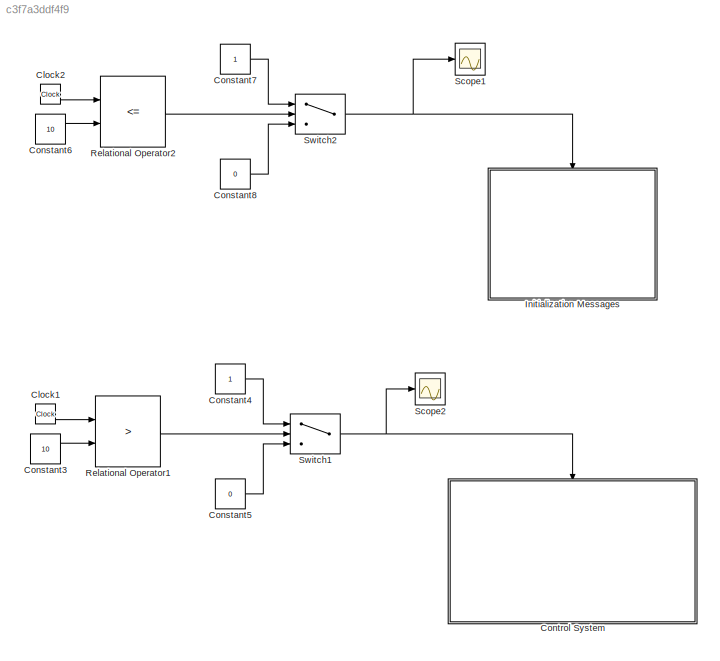
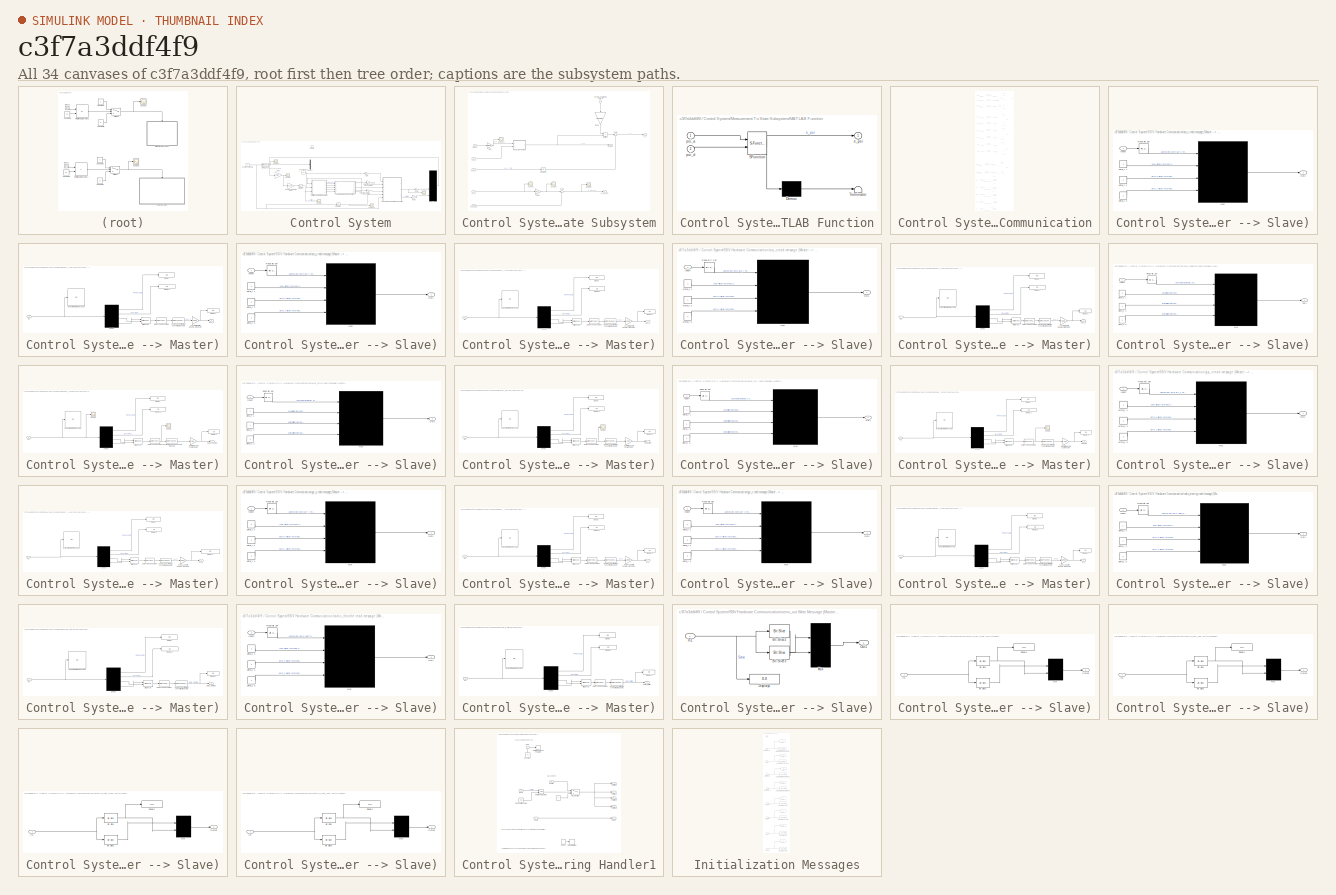
[diagram: thumbnail index - all 34 canvases of the model, root first then tree order]
MODEL slx_c3f7a3ddf4f9
KIND model
CONFIG AbsTol = auto
CONFIG EnableMultiTasking = on
CONFIG FixedStep = .003
CONFIG MaxStep = auto
CONFIG MinStep = auto
CONFIG RelTol = 1e-3
CONFIG SampleTimeConstraint = Unconstrained
CONFIG Solver = FixedStepAuto
CONFIG SolverName = FixedStepAuto
CONFIG StartTime = 0.0
CONFIG StopTime = inf
BLOCK [Clock] Clock1
BLOCK [Clock] Clock2
BLOCK [Constant] Constant3
  Value = 10
BLOCK [Constant] Constant4
BLOCK [Constant] Constant5
  Value = 0
BLOCK [Constant] Constant6
  Value = 10
BLOCK [Constant] Constant7
BLOCK [Constant] Constant8
  Value = 0
BLOCK [SubSystem] Control System
  Ports = [0, 0, 1]
  RequestExecContextInheritance = off
BLOCK [Constant] Control System/Const Mot Vel
  Value = 100
BLOCK [Gain] Control System/Correcting For Sign Convention
  Gain = -1
  OutDataTypeStr = Inherit: Inherit via internal rule
  ParamDataTypeStr = Inherit: Inherit via internal rule
  SaturateOnIntegerOverflow = off
BLOCK [Gain] Control System/Correcting For Sign Convention1
  OutDataTypeStr = Inherit: Inherit via internal rule
  ParamDataTypeStr = Inherit: Inherit via internal rule
  SaturateOnIntegerOverflow = off
BLOCK [Demux] Control System/Demux
  DisplayOption = bar
  Ports = [1, 4]
BLOCK [Constant] Control System/Desired Yaw Rate
  Value = .5
BLOCK [EnablePort] Control System/Enable
  Ports = []
BLOCK [Gain] Control System/Gain
  Gain = 2
  OutDataTypeStr = Inherit: Inherit via internal rule
  ParamDataTypeStr = Inherit: Inherit via internal rule
  SaturateOnIntegerOverflow = off
BLOCK [Gain] Control System/Gain1
  OutDataTypeStr = Inherit: Inherit via internal rule
  ParamDataTypeStr = Inherit: Inherit via internal rule
  SaturateOnIntegerOverflow = off
BLOCK [Gain] Control System/Gain2
  Gain = 5
  OutDataTypeStr = Inherit: Inherit via internal rule
  ParamDataTypeStr = Inherit: Inherit via internal rule
  SaturateOnIntegerOverflow = off
BLOCK [Gain] Control System/Gain9
  Gain = -Klqr
  Multiplication = Matrix(K*u)
  OutDataTypeStr = Inherit: Inherit via internal rule
  ParamDataTypeStr = Inherit: Inherit via internal rule
  SaturateOnIntegerOverflow = off
BLOCK [Integrator] Control System/Integrator
  Ports = [1, 1]
BLOCK [SubSystem] Control System/Measurement To State Subsystem
  Ports = [6, 3]
  RequestExecContextInheritance = off
BLOCK [Gain] Control System/Measurement To State Subsystem/Gain
  Gain = pi/180
  OutDataTypeStr = Inherit: Inherit via internal rule
  ParamDataTypeStr = Inherit: Inherit via internal rule
  SaturateOnIntegerOverflow = off
BLOCK [Gain] Control System/Measurement To State Subsystem/Gain1
  Gain = pi*2
  OutDataTypeStr = Inherit: Inherit via internal rule
  ParamDataTypeStr = Inherit: Inherit via internal rule
  SaturateOnIntegerOverflow = off
BLOCK [Gain] Control System/Measurement To State Subsystem/Gain2
  Gain = MCVelGain
  OutDataTypeStr = Inherit: Inherit via internal rule
  ParamDataTypeStr = Inherit: Inherit via internal rule
  SaturateOnIntegerOverflow = off
BLOCK [Integrator] Control System/Measurement To State Subsystem/Integrator1
  Ports = [1, 1]
BLOCK [SubSystem] Control System/Measurement To State Subsystem/MATLAB Function
  ErrorFcn = Stateflow.Translate.translate
  PermitHierarchicalResolution = ExplicitOnly
  Ports = [2, 1]
  RequestExecContextInheritance = off
  SFBlockType = MATLAB Function
  TreatAsAtomicUnit = on
BLOCK [Demux] Control System/Measurement To State Subsystem/MATLAB Function/ Demux 
  Outputs = 1
  Ports = [1, 1]
BLOCK [S-Function] Control System/Measurement To State Subsystem/MATLAB Function/ SFunction 
  EnableBusSupport = on
  FunctionName = sf_sfun
  PortCounts = [2 2]
  Ports = [2, 2]
  SFcnIsStateOwnerBlock = off
  SFunctionDeploymentMode = off
  Tag = Stateflow S-Function Yaw_controller_test_5_26_18_2017a 4
BLOCK [Terminator] Control System/Measurement To State Subsystem/MATLAB Function/ Terminator 
BLOCK [Outport] Control System/Measurement To State Subsystem/MATLAB Function/e_psi
  IconDisplay = Port number
BLOCK [Inport] Control System/Measurement To State Subsystem/MATLAB Function/psi_a
  IconDisplay = Port number
BLOCK [Inport] Control System/Measurement To State Subsystem/MATLAB Function/psi_d
  IconDisplay = Port number
  Port = 2
BLOCK [Product] Control System/Measurement To State Subsystem/Multiply1
  InputSameDT = off
  OutDataTypeStr = Inherit: Inherit via internal rule
  Ports = [2, 1]
  RndMeth = Floor
  SaturateOnIntegerOverflow = off
BLOCK [Scope] Control System/Measurement To State Subsystem/Scope11
  Floating = off
  NumInputPorts = 1
  Ports = [1]
  ScopeSpecificationString = Simulink.scopes.TimeScopeBlockCfg('CurrentConfiguration', extmgr.ConfigurationSet(extmgr.Configuration('Core','General UI',true),extmgr.Configuration('Core','Source UI',true),extmgr.Configuration('Sources','WiredSimulink',true,'DataLoggingVariableName','psi_rad','DataLogging',true,'DataLoggingSaveFormat','Array'),extmgr.Configuration('Visuals','Time Domain',true,'SerializedDisplays',{struct('MinYL...<+1515ch>
BLOCK [Scope] Control System/Measurement To State Subsystem/Scope2
  Floating = off
  NumInputPorts = 1
  Ports = [1]
  ScopeSpecificationString = Simulink.scopes.TimeScopeBlockCfg('CurrentConfiguration', extmgr.ConfigurationSet(extmgr.Configuration('Core','General UI',true),extmgr.Configuration('Core','Source UI',true),extmgr.Configuration('Sources','WiredSimulink',true,'DataLoggingVariableName','psidot','DataLoggingSaveFormat','Array'),extmgr.Configuration('Visuals','Time Domain',true,'SerializedDisplays',{struct('MinYLimReal','-12.295','M...<+1484ch>
BLOCK [Scope] Control System/Measurement To State Subsystem/Scope3
  Floating = off
  NumInputPorts = 1
  Ports = [1]
  ScopeSpecificationString = Simulink.scopes.TimeScopeBlockCfg('CurrentConfiguration', extmgr.ConfigurationSet(extmgr.Configuration('Core','General UI',true),extmgr.Configuration('Core','Source UI',true),extmgr.Configuration('Sources','WiredSimulink',true,'DataLoggingVariableName','psi_dot_rad','DataLogging',true,'DataLoggingSaveFormat','Array'),extmgr.Configuration('Visuals','Time Domain',true,'SerializedDisplays',{struct('M...<+1512ch>
BLOCK [Scope] Control System/Measurement To State Subsystem/Scope7
  Floating = off
  NumInputPorts = 1
  Ports = [1]
  ScopeSpecificationString = Simulink.scopes.TimeScopeBlockCfg('CurrentConfiguration', extmgr.ConfigurationSet(extmgr.Configuration('Core','General UI',true),extmgr.Configuration('Core','Source UI',true),extmgr.Configuration('Sources','WiredSimulink',true,'DataLoggingVariableName','e_psi_dot','DataLogging',true,'DataLoggingSaveFormat','Array'),extmgr.Configuration('Visuals','Time Domain',true,'SerializedDisplays',{struct('Min...<+1514ch>
BLOCK [Sum] Control System/Measurement To State Subsystem/Sum1
  IconShape = round
  InputSameDT = off
  Inputs = |+-
  OutDataTypeStr = Inherit: Inherit via internal rule
  Ports = [2, 1]
  SaturateOnIntegerOverflow = off
BLOCK [Sum] Control System/Measurement To State Subsystem/Sum4
  IconShape = round
  InputSameDT = off
  Inputs = |++
  OutDataTypeStr = Inherit: Inherit via internal rule
  Ports = [2, 1]
  SaturateOnIntegerOverflow = off
BLOCK [Inport] Control System/Measurement To State Subsystem/Vehicle Longitudinal Velocity
  IconDisplay = Port number
BLOCK [Inport] Control System/Measurement To State Subsystem/acc_y 
  IconDisplay = Port number
  Port = 3
BLOCK [Outport] Control System/Measurement To State Subsystem/e_psi
  IconDisplay = Port number
  Port = 2
BLOCK [Outport] Control System/Measurement To State Subsystem/e_psi_dot
  IconDisplay = Port number
  Port = 3
BLOCK [Outport] Control System/Measurement To State Subsystem/e_v
  IconDisplay = Port number
BLOCK [Inport] Control System/Measurement To State Subsystem/euler_z
  IconDisplay = Port number
  Port = 2
BLOCK [Inport] Control System/Measurement To State Subsystem/gyr_z
  IconDisplay = Port number
  Port = 4
BLOCK [Inport] Control System/Measurement To State Subsystem/psi_d
  IconDisplay = Port number
  Port = 5
BLOCK [Inport] Control System/Measurement To State Subsystem/psi_dot_d
  IconDisplay = Port number
  Port = 6
BLOCK [Mux] Control System/Mux
  DisplayOption = signals
  Ports = [4, 1]
BLOCK [Gain] Control System/Radians to Steering Input
  Gain = 1170
  OutDataTypeStr = Inherit: Inherit via internal rule
  ParamDataTypeStr = Inherit: Inherit via internal rule
  SaturateOnIntegerOverflow = off
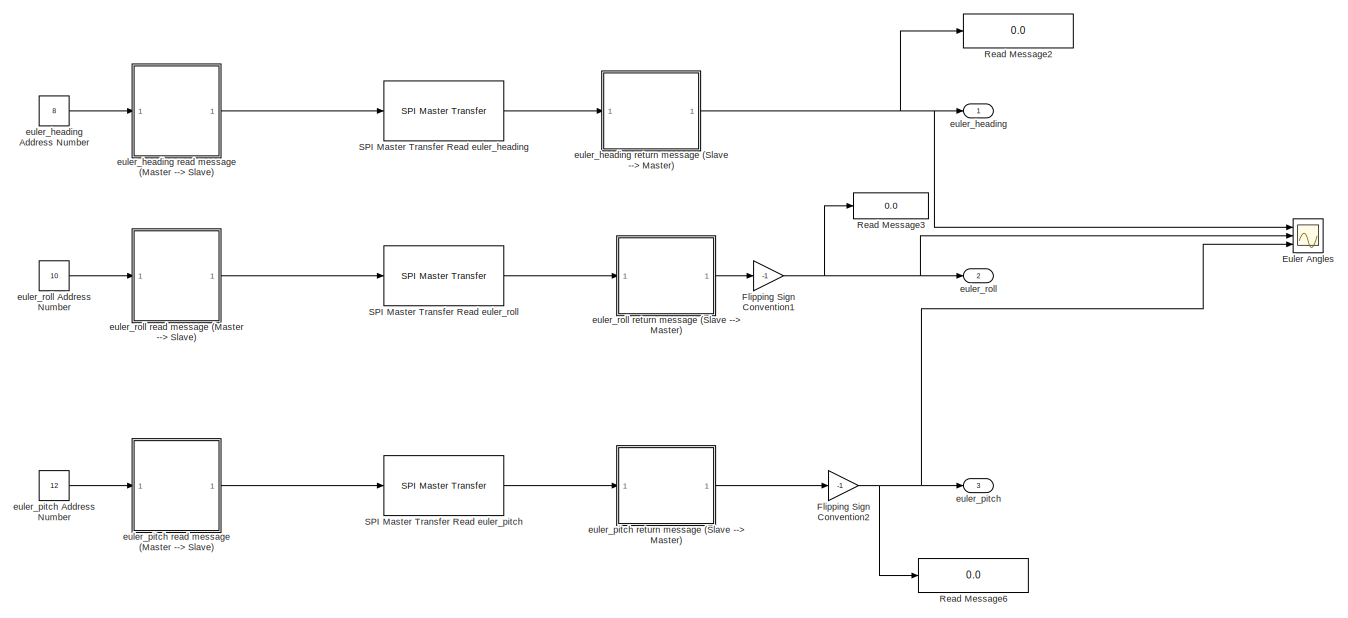
[diagram: Control System/SSIV Hardware Communication - part 1/5, full width, top band]
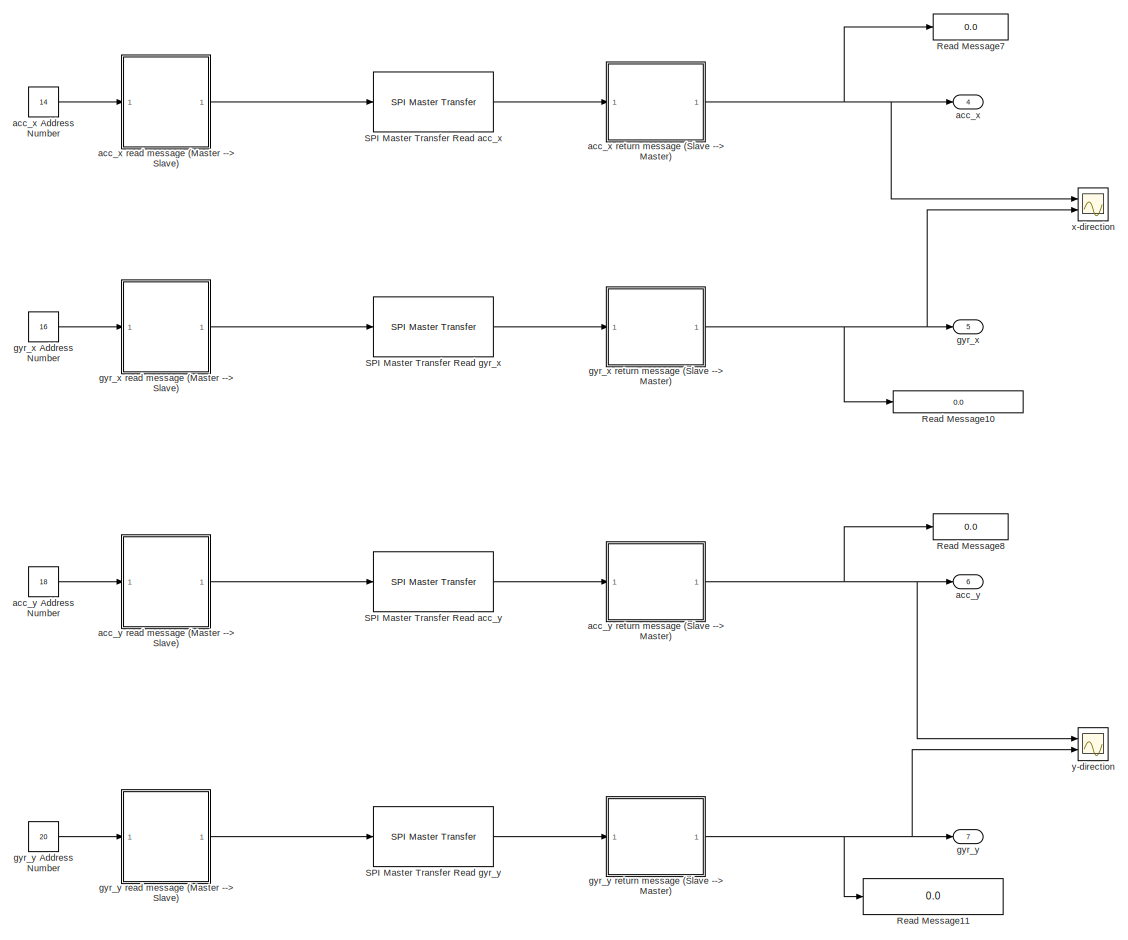
[diagram: Control System/SSIV Hardware Communication - part 2/5, full width, top band]
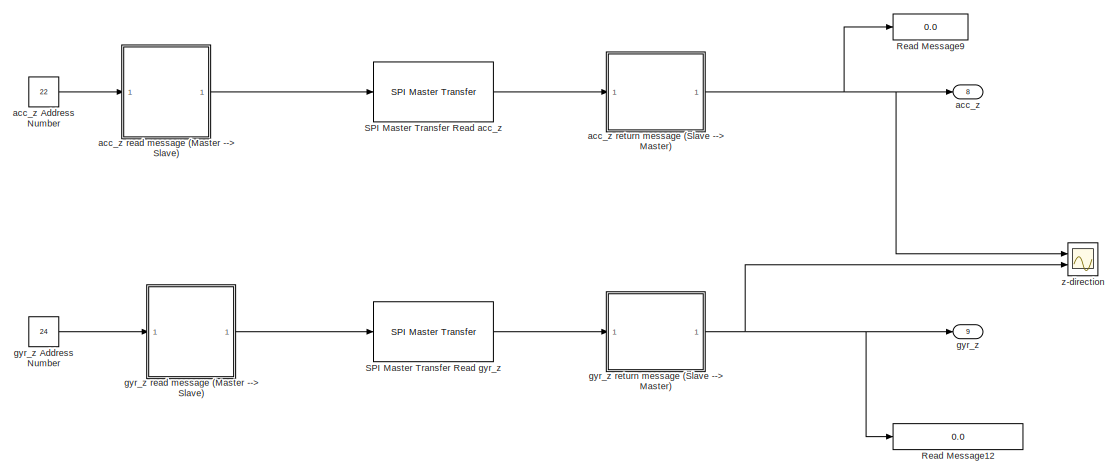
[diagram: Control System/SSIV Hardware Communication - part 3/5, full width, middle band]
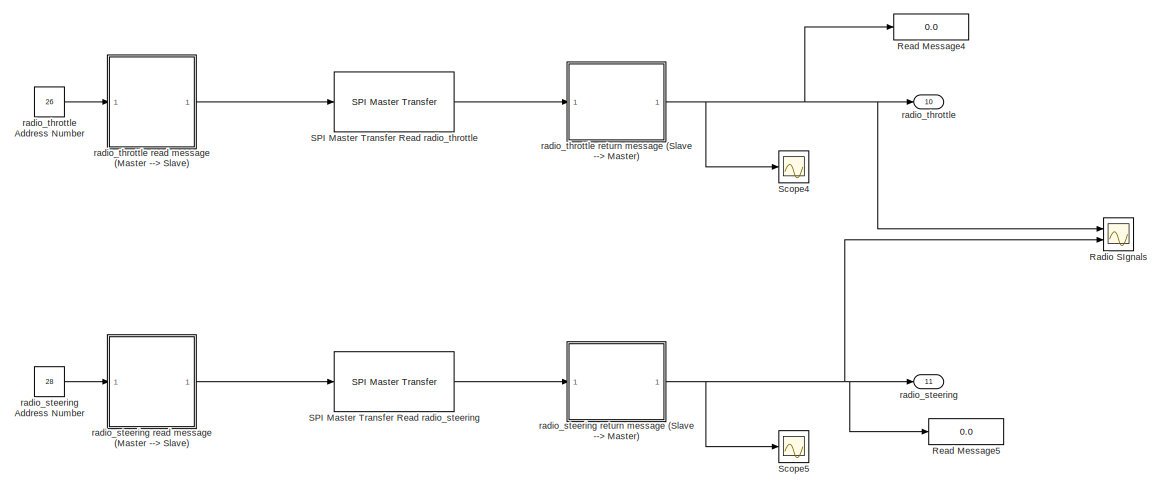
[diagram: Control System/SSIV Hardware Communication - part 4/5, full width, middle band]
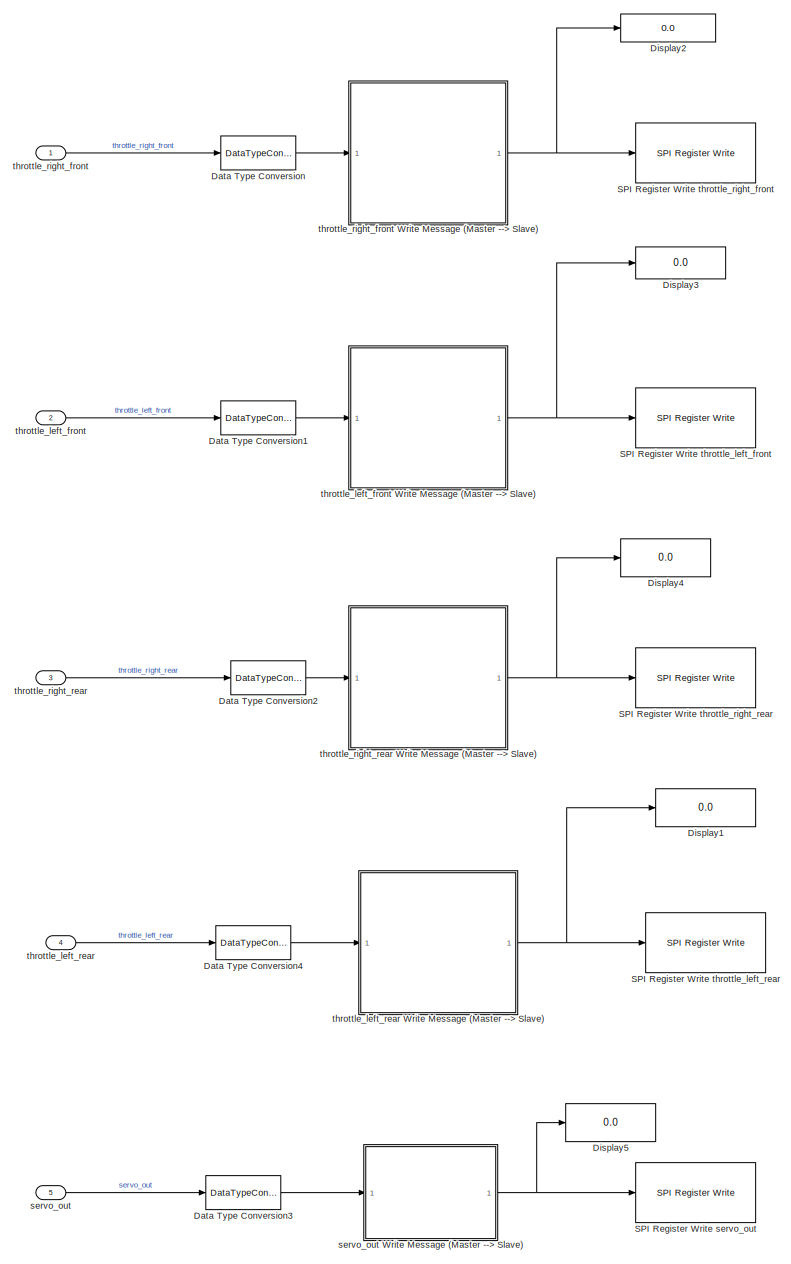
[diagram: Control System/SSIV Hardware Communication - part 5/5, bottom left region]
BLOCK [SubSystem] Control System/SSIV Hardware Communication
  Ports = [5, 11]
  RequestExecContextInheritance = off
BLOCK [DataTypeConversion] Control System/SSIV Hardware Communication/Data Type Conversion
  LockScale = on
  OutDataTypeStr = int16
  RndMeth = Nearest
  SaturateOnIntegerOverflow = off
BLOCK [DataTypeConversion] Control System/SSIV Hardware Communication/Data Type Conversion1
  OutDataTypeStr = int16
  RndMeth = Nearest
  SaturateOnIntegerOverflow = off
BLOCK [DataTypeConversion] Control System/SSIV Hardware Communication/Data Type Conversion2
  OutDataTypeStr = int16
  RndMeth = Nearest
  SaturateOnIntegerOverflow = off
BLOCK [DataTypeConversion] Control System/SSIV Hardware Communication/Data Type Conversion3
  OutDataTypeStr = int16
  RndMeth = Nearest
  SaturateOnIntegerOverflow = off
BLOCK [DataTypeConversion] Control System/SSIV Hardware Communication/Data Type Conversion4
  OutDataTypeStr = int16
  RndMeth = Nearest
  SaturateOnIntegerOverflow = off
BLOCK [Display] Control System/SSIV Hardware Communication/Display1
  Decimation = 1
  Format = decimal (Stored Integer)
  Ports = [1]
BLOCK [Display] Control System/SSIV Hardware Communication/Display2
  Decimation = 1
  Format = decimal (Stored Integer)
  Ports = [1]
BLOCK [Display] Control System/SSIV Hardware Communication/Display3
  Decimation = 1
  Format = decimal (Stored Integer)
  Ports = [1]
BLOCK [Display] Control System/SSIV Hardware Communication/Display4
  Decimation = 1
  Format = decimal (Stored Integer)
  Ports = [1]
BLOCK [Display] Control System/SSIV Hardware Communication/Display5
  Decimation = 1
  Format = decimal (Stored Integer)
  Ports = [1]
BLOCK [Scope] Control System/SSIV Hardware Communication/Euler Angles
  Floating = off
  NumInputPorts = 3
  Ports = [3]
  ScopeSpecificationString = Simulink.scopes.TimeScopeBlockCfg('CurrentConfiguration', extmgr.ConfigurationSet(extmgr.Configuration('Core','General UI',true),extmgr.Configuration('Core','Source UI',true),extmgr.Configuration('Sources','WiredSimulink',true,'DataLoggingVariableName','ScopeData4'),extmgr.Configuration('Visuals','Time Domain',true,'SerializedDisplays',{struct('MinYLimReal','-1038.92188','MaxYLimReal','515.29688',...<+2891ch>
BLOCK [Gain] Control System/SSIV Hardware Communication/Flipping Sign Convention1
  Gain = -1
  OutDataTypeStr = Inherit: Inherit via internal rule
  ParamDataTypeStr = Inherit: Inherit via internal rule
  SaturateOnIntegerOverflow = off
BLOCK [Gain] Control System/SSIV Hardware Communication/Flipping Sign Convention2
  Gain = -1
  OutDataTypeStr = Inherit: Inherit via internal rule
  ParamDataTypeStr = Inherit: Inherit via internal rule
  SaturateOnIntegerOverflow = off
BLOCK [Scope] Control System/SSIV Hardware Communication/Radio SIgnals
  Floating = off
  NumInputPorts = 2
  Ports = [2]
  ScopeSpecificationString = Simulink.scopes.TimeScopeBlockCfg('CurrentConfiguration', extmgr.ConfigurationSet(extmgr.Configuration('Core','General UI',true),extmgr.Configuration('Core','Source UI',true),extmgr.Configuration('Sources','WiredSimulink',true,'DataLoggingVariableName','ScopeData1'),extmgr.Configuration('Visuals','Time Domain',true,'SerializedDisplays',{struct('MinYLimReal','-271.25','MaxYLimReal','191.25','YLabel...<+2131ch>
BLOCK [Display] Control System/SSIV Hardware Communication/Read Message10
  Decimation = 1
  Format = decimal (Stored Integer)
  Ports = [1]
BLOCK [Display] Control System/SSIV Hardware Communication/Read Message11
  Decimation = 1
  Format = decimal (Stored Integer)
  Ports = [1]
BLOCK [Display] Control System/SSIV Hardware Communication/Read Message12
  Decimation = 1
  Format = decimal (Stored Integer)
  Ports = [1]
BLOCK [Display] Control System/SSIV Hardware Communication/Read Message2
  Decimation = 1
  Format = decimal (Stored Integer)
  Ports = [1]
BLOCK [Display] Control System/SSIV Hardware Communication/Read Message3
  Decimation = 1
  Format = decimal (Stored Integer)
  Ports = [1]
BLOCK [Display] Control System/SSIV Hardware Communication/Read Message4
  Decimation = 1
  Format = decimal (Stored Integer)
  Ports = [1]
BLOCK [Display] Control System/SSIV Hardware Communication/Read Message5
  Decimation = 1
  Format = decimal (Stored Integer)
  Ports = [1]
BLOCK [Display] Control System/SSIV Hardware Communication/Read Message6
  Decimation = 1
  Format = decimal (Stored Integer)
  Ports = [1]
BLOCK [Display] Control System/SSIV Hardware Communication/Read Message7
  Decimation = 1
  Format = decimal (Stored Integer)
  Ports = [1]
BLOCK [Display] Control System/SSIV Hardware Communication/Read Message8
  Decimation = 1
  Format = decimal (Stored Integer)
  Ports = [1]
BLOCK [Display] Control System/SSIV Hardware Communication/Read Message9
  Decimation = 1
  Format = decimal (Stored Integer)
  Ports = [1]
BLOCK [Reference] Control System/SSIV Hardware Communication/SPI Master Transfer Read acc_x  REF=raspberrypilib/SPI Master Transfer
  Ports = [1, 1]
  SourceBlock = raspberrypilib/SPI Master Transfer
  SourceProductBaseCode = RASPPI
  SourceProductName = Simulink Support Package for Raspberry Pi Hardware
  SourceType = codertarget.raspi.internal.SPIMasterTransfer
BLOCK [Reference] Control System/SSIV Hardware Communication/SPI Master Transfer Read acc_y  REF=raspberrypilib/SPI Master Transfer
  Ports = [1, 1]
  SourceBlock = raspberrypilib/SPI Master Transfer
  SourceProductBaseCode = RASPPI
  SourceProductName = Simulink Support Package for Raspberry Pi Hardware
  SourceType = codertarget.raspi.internal.SPIMasterTransfer
BLOCK [Reference] Control System/SSIV Hardware Communication/SPI Master Transfer Read acc_z  REF=raspberrypilib/SPI Master Transfer
  Ports = [1, 1]
  SourceBlock = raspberrypilib/SPI Master Transfer
  SourceProductBaseCode = RASPPI
  SourceProductName = Simulink Support Package for Raspberry Pi Hardware
  SourceType = codertarget.raspi.internal.SPIMasterTransfer
BLOCK [Reference] Control System/SSIV Hardware Communication/SPI Master Transfer Read euler_heading  REF=raspberrypilib/SPI Master Transfer
  Ports = [1, 1]
  SourceBlock = raspberrypilib/SPI Master Transfer
  SourceProductBaseCode = RASPPI
  SourceProductName = Simulink Support Package for Raspberry Pi Hardware
  SourceType = codertarget.raspi.internal.SPIMasterTransfer
BLOCK [Reference] Control System/SSIV Hardware Communication/SPI Master Transfer Read euler_pitch  REF=raspberrypilib/SPI Master Transfer
  Ports = [1, 1]
  SourceBlock = raspberrypilib/SPI Master Transfer
  SourceProductBaseCode = RASPPI
  SourceProductName = Simulink Support Package for Raspberry Pi Hardware
  SourceType = codertarget.raspi.internal.SPIMasterTransfer
BLOCK [Reference] Control System/SSIV Hardware Communication/SPI Master Transfer Read euler_roll  REF=raspberrypilib/SPI Master Transfer
  Ports = [1, 1]
  SourceBlock = raspberrypilib/SPI Master Transfer
  SourceProductBaseCode = RASPPI
  SourceProductName = Simulink Support Package for Raspberry Pi Hardware
  SourceType = codertarget.raspi.internal.SPIMasterTransfer
BLOCK [Reference] Control System/SSIV Hardware Communication/SPI Master Transfer Read gyr_x  REF=raspberrypilib/SPI Master Transfer
  Ports = [1, 1]
  SourceBlock = raspberrypilib/SPI Master Transfer
  SourceProductBaseCode = RASPPI
  SourceProductName = Simulink Support Package for Raspberry Pi Hardware
  SourceType = codertarget.raspi.internal.SPIMasterTransfer
BLOCK [Reference] Control System/SSIV Hardware Communication/SPI Master Transfer Read gyr_y  REF=raspberrypilib/SPI Master Transfer
  Ports = [1, 1]
  SourceBlock = raspberrypilib/SPI Master Transfer
  SourceProductBaseCode = RASPPI
  SourceProductName = Simulink Support Package for Raspberry Pi Hardware
  SourceType = codertarget.raspi.internal.SPIMasterTransfer
BLOCK [Reference] Control System/SSIV Hardware Communication/SPI Master Transfer Read gyr_z  REF=raspberrypilib/SPI Master Transfer
  Ports = [1, 1]
  SourceBlock = raspberrypilib/SPI Master Transfer
  SourceProductBaseCode = RASPPI
  SourceProductName = Simulink Support Package for Raspberry Pi Hardware
  SourceType = codertarget.raspi.internal.SPIMasterTransfer
BLOCK [Reference] Control System/SSIV Hardware Communication/SPI Master Transfer Read radio_steering  REF=raspberrypilib/SPI Master Transfer
  Ports = [1, 1]
  SourceBlock = raspberrypilib/SPI Master Transfer
  SourceProductBaseCode = RASPPI
  SourceProductName = Simulink Support Package for Raspberry Pi Hardware
  SourceType = codertarget.raspi.internal.SPIMasterTransfer
BLOCK [Reference] Control System/SSIV Hardware Communication/SPI Master Transfer Read radio_throttle  REF=raspberrypilib/SPI Master Transfer
  Ports = [1, 1]
  SourceBlock = raspberrypilib/SPI Master Transfer
  SourceProductBaseCode = RASPPI
  SourceProductName = Simulink Support Package for Raspberry Pi Hardware
  SourceType = codertarget.raspi.internal.SPIMasterTransfer
BLOCK [Reference] Control System/SSIV Hardware Communication/SPI Register Write servo_out   REF=raspberrypilib/SPI Register Write
  Ports = [1]
  SourceBlock = raspberrypilib/SPI Register Write
  SourceProductBaseCode = RASPPI
  SourceProductName = Simulink Support Package for Raspberry Pi Hardware
  SourceType = codertarget.raspi.internal.SPIRegisterWrite
BLOCK [Reference] Control System/SSIV Hardware Communication/SPI Register Write throttle_left_front  REF=raspberrypilib/SPI Register Write
  Ports = [1]
  SourceBlock = raspberrypilib/SPI Register Write
  SourceProductBaseCode = RASPPI
  SourceProductName = Simulink Support Package for Raspberry Pi Hardware
  SourceType = codertarget.raspi.internal.SPIRegisterWrite
BLOCK [Reference] Control System/SSIV Hardware Communication/SPI Register Write throttle_left_rear  REF=raspberrypilib/SPI Register Write
  Ports = [1]
  SourceBlock = raspberrypilib/SPI Register Write
  SourceProductBaseCode = RASPPI
  SourceProductName = Simulink Support Package for Raspberry Pi Hardware
  SourceType = codertarget.raspi.internal.SPIRegisterWrite
BLOCK [Reference] Control System/SSIV Hardware Communication/SPI Register Write throttle_right_front  REF=raspberrypilib/SPI Register Write
  Ports = [1]
  SourceBlock = raspberrypilib/SPI Register Write
  SourceProductBaseCode = RASPPI
  SourceProductName = Simulink Support Package for Raspberry Pi Hardware
  SourceType = codertarget.raspi.internal.SPIRegisterWrite
BLOCK [Reference] Control System/SSIV Hardware Communication/SPI Register Write throttle_right_rear  REF=raspberrypilib/SPI Register Write
  Ports = [1]
  SourceBlock = raspberrypilib/SPI Register Write
  SourceProductBaseCode = RASPPI
  SourceProductName = Simulink Support Package for Raspberry Pi Hardware
  SourceType = codertarget.raspi.internal.SPIRegisterWrite
BLOCK [Scope] Control System/SSIV Hardware Communication/Scope4
  Floating = off
  NumInputPorts = 1
  Ports = [1]
  ScopeSpecificationString = Simulink.scopes.TimeScopeBlockCfg('CurrentConfiguration', extmgr.ConfigurationSet(extmgr.Configuration('Core','General UI',true,'FigureColor',[0.941176470588235 0.941176470588235 0.941176470588235]),extmgr.Configuration('Core','Source UI',true),extmgr.Configuration('Sources','WiredSimulink',true,'DataLoggingVariableName','ScopeData2'),extmgr.Configuration('Visuals','Time Domain',true,'SerializedDi...<+1784ch>
BLOCK [Scope] Control System/SSIV Hardware Communication/Scope5
  Floating = off
  NumInputPorts = 1
  Ports = [1]
  ScopeSpecificationString = Simulink.scopes.TimeScopeBlockCfg('CurrentConfiguration', extmgr.ConfigurationSet(extmgr.Configuration('Core','General UI',true,'FigureColor',[0.941176470588235 0.941176470588235 0.941176470588235]),extmgr.Configuration('Core','Source UI',true),extmgr.Configuration('Sources','WiredSimulink',true,'DataLoggingVariableName','ScopeData3'),extmgr.Configuration('Visuals','Time Domain',true,'SerializedDi...<+1818ch>
BLOCK [Outport] Control System/SSIV Hardware Communication/acc_x
  IconDisplay = Port number
  Port = 4
BLOCK [Constant] Control System/SSIV Hardware Communication/acc_x Address Number
  OutDataTypeStr = uint8
  Value = 14
BLOCK [SubSystem] Control System/SSIV Hardware Communication/acc_x read message (Master --> Slave)
  Ports = [1, 1]
  RequestExecContextInheritance = off
BLOCK [Inport] Control System/SSIV Hardware Communication/acc_x read message (Master --> Slave)/Inport
  IconDisplay = Port number
BLOCK [Mux] Control System/SSIV Hardware Communication/acc_x read message (Master --> Slave)/Mux
  DisplayOption = signals
  Ports = [4, 1]
BLOCK [Outport] Control System/SSIV Hardware Communication/acc_x read message (Master --> Slave)/Out1
  IconDisplay = Port number
BLOCK [Reference] Control System/SSIV Hardware Communication/acc_x read message (Master --> Slave)/Read Bit Set  REF=simulink/Logic and Bit
Operations/Bit Set
  Ports = [1, 1]
  SourceBlock = simulink/Logic and Bit\nOperations/Bit Set
  SourceProductBaseCode = SL
  SourceProductName = Simulink
  SourceType = Bit Set
BLOCK [Constant] Control System/SSIV Hardware Communication/acc_x read message (Master --> Slave)/uint8_t 1
  OutDataTypeStr = uint8
BLOCK [Constant] Control System/SSIV Hardware Communication/acc_x read message (Master --> Slave)/uint8_t 2
  OutDataTypeStr = uint8
BLOCK [Constant] Control System/SSIV Hardware Communication/acc_x read message (Master --> Slave)/uint8_t 3
  OutDataTypeStr = uint8
BLOCK [SubSystem] Control System/SSIV Hardware Communication/acc_x return message (Slave --> Master)
  Ports = [1, 1]
  RequestExecContextInheritance = off
BLOCK [DataTypeConversion] Control System/SSIV Hardware Communication/acc_x return message (Slave --> Master)/8 bytes concatinated converted to double
  OutDataTypeStr = double
  RndMeth = Nearest
  SaturateOnIntegerOverflow = off
BLOCK [Gain] Control System/SSIV Hardware Communication/acc_x return message (Slave --> Master)/Acceleration Int to Double Scale Factor
  Gain = 1/100
  OutDataTypeStr = Inherit: Inherit via internal rule
  ParamDataTypeStr = Inherit: Inherit via internal rule
  SaturateOnIntegerOverflow = off
BLOCK [Reference] Control System/SSIV Hardware Communication/acc_x return message (Slave --> Master)/Bit Concat  REF=hdlsllib/Logic and Bit
Operations/Bit Concat
  Ports = [2, 1]
  SourceBlock = hdlsllib/Logic and Bit\nOperations/Bit Concat
  SourceProductBaseCode = HD
  SourceProductName = HDL Coder
  SourceType = Bit Concat
BLOCK [Display] Control System/SSIV Hardware Communication/acc_x return message (Slave --> Master)/Bytes of the return message
  Decimation = 1
  Format = decimal (Stored Integer)
  Ports = [1]
BLOCK [DataTypeConversion] Control System/SSIV Hardware Communication/acc_x return message (Slave --> Master)/Data Type Conversion
  OutDataTypeStr = int16
  RndMeth = Nearest
  SaturateOnIntegerOverflow = off
BLOCK [Demux] Control System/SSIV Hardware Communication/acc_x return message (Slave --> Master)/Demux
  Ports = [1, 4]
BLOCK [Display] Control System/SSIV Hardware Communication/acc_x return message (Slave --> Master)/Display
  Decimation = 1
  Format = binary (Stored Integer)
  Ports = [1]
BLOCK [Display] Control System/SSIV Hardware Communication/acc_x return message (Slave --> Master)/Display1
  Decimation = 1
  Format = decimal (Stored Integer)
  Ports = [1]
BLOCK [Display] Control System/SSIV Hardware Communication/acc_x return message (Slave --> Master)/Display2
  Decimation = 1
  Format = binary (Stored Integer)
  Ports = [1]
BLOCK [Inport] Control System/SSIV Hardware Communication/acc_x return message (Slave --> Master)/In1
  IconDisplay = Port number
BLOCK [Outport] Control System/SSIV Hardware Communication/acc_x return message (Slave --> Master)/acc_x
  IconDisplay = Port number
BLOCK [Outport] Control System/SSIV Hardware Communication/acc_y
  IconDisplay = Port number
  Port = 6
BLOCK [Constant] Control System/SSIV Hardware Communication/acc_y Address Number
  OutDataTypeStr = uint8
  Value = 18
BLOCK [SubSystem] Control System/SSIV Hardware Communication/acc_y read message (Master --> Slave)
  Ports = [1, 1]
  RequestExecContextInheritance = off
BLOCK [Inport] Control System/SSIV Hardware Communication/acc_y read message (Master --> Slave)/Inport
  IconDisplay = Port number
BLOCK [Mux] Control System/SSIV Hardware Communication/acc_y read message (Master --> Slave)/Mux
  DisplayOption = signals
  Ports = [4, 1]
BLOCK [Outport] Control System/SSIV Hardware Communication/acc_y read message (Master --> Slave)/Out1
  IconDisplay = Port number
BLOCK [Reference] Control System/SSIV Hardware Communication/acc_y read message (Master --> Slave)/Read Bit Set  REF=simulink/Logic and Bit
Operations/Bit Set
  Ports = [1, 1]
  SourceBlock = simulink/Logic and Bit\nOperations/Bit Set
  SourceProductBaseCode = SL
  SourceProductName = Simulink
  SourceType = Bit Set
BLOCK [Constant] Control System/SSIV Hardware Communication/acc_y read message (Master --> Slave)/uint8_t 1
  OutDataTypeStr = uint8
BLOCK [Constant] Control System/SSIV Hardware Communication/acc_y read message (Master --> Slave)/uint8_t 2
  OutDataTypeStr = uint8
BLOCK [Constant] Control System/SSIV Hardware Communication/acc_y read message (Master --> Slave)/uint8_t 3
  OutDataTypeStr = uint8
BLOCK [SubSystem] Control System/SSIV Hardware Communication/acc_y return message (Slave --> Master)
  Ports = [1, 1]
  RequestExecContextInheritance = off
BLOCK [DataTypeConversion] Control System/SSIV Hardware Communication/acc_y return message (Slave --> Master)/8 bytes concatinated converted to double
  OutDataTypeStr = double
  RndMeth = Nearest
  SaturateOnIntegerOverflow = off
BLOCK [Gain] Control System/SSIV Hardware Communication/acc_y return message (Slave --> Master)/Acceleration Int to Double Scale Factor
  Gain = 1/100
  OutDataTypeStr = Inherit: Inherit via internal rule
  ParamDataTypeStr = Inherit: Inherit via internal rule
  SaturateOnIntegerOverflow = off
BLOCK [Reference] Control System/SSIV Hardware Communication/acc_y return message (Slave --> Master)/Bit Concat  REF=hdlsllib/Logic and Bit
Operations/Bit Concat
  Ports = [2, 1]
  SourceBlock = hdlsllib/Logic and Bit\nOperations/Bit Concat
  SourceProductBaseCode = HD
  SourceProductName = HDL Coder
  SourceType = Bit Concat
BLOCK [Display] Control System/SSIV Hardware Communication/acc_y return message (Slave --> Master)/Bytes of the return message
  Decimation = 1
  Format = decimal (Stored Integer)
  Ports = [1]
BLOCK [DataTypeConversion] Control System/SSIV Hardware Communication/acc_y return message (Slave --> Master)/Data Type Conversion
  OutDataTypeStr = int16
  RndMeth = Nearest
  SaturateOnIntegerOverflow = off
BLOCK [Demux] Control System/SSIV Hardware Communication/acc_y return message (Slave --> Master)/Demux
  Ports = [1, 4]
BLOCK [Display] Control System/SSIV Hardware Communication/acc_y return message (Slave --> Master)/Display
  Decimation = 1
  Format = binary (Stored Integer)
  Ports = [1]
BLOCK [Display] Control System/SSIV Hardware Communication/acc_y return message (Slave --> Master)/Display1
  Decimation = 1
  Format = decimal (Stored Integer)
  Ports = [1]
BLOCK [Display] Control System/SSIV Hardware Communication/acc_y return message (Slave --> Master)/Display2
  Decimation = 1
  Format = binary (Stored Integer)
  Ports = [1]
BLOCK [Inport] Control System/SSIV Hardware Communication/acc_y return message (Slave --> Master)/In1
  IconDisplay = Port number
BLOCK [Outport] Control System/SSIV Hardware Communication/acc_y return message (Slave --> Master)/acc_y
  IconDisplay = Port number
BLOCK [Outport] Control System/SSIV Hardware Communication/acc_z
  IconDisplay = Port number
  Port = 8
BLOCK [Constant] Control System/SSIV Hardware Communication/acc_z Address Number
  OutDataTypeStr = uint8
  Value = 22
BLOCK [SubSystem] Control System/SSIV Hardware Communication/acc_z read message (Master --> Slave)
  Ports = [1, 1]
  RequestExecContextInheritance = off
BLOCK [Inport] Control System/SSIV Hardware Communication/acc_z read message (Master --> Slave)/Inport
  IconDisplay = Port number
BLOCK [Mux] Control System/SSIV Hardware Communication/acc_z read message (Master --> Slave)/Mux
  DisplayOption = signals
  Ports = [4, 1]
BLOCK [Outport] Control System/SSIV Hardware Communication/acc_z read message (Master --> Slave)/Out1
  IconDisplay = Port number
BLOCK [Reference] Control System/SSIV Hardware Communication/acc_z read message (Master --> Slave)/Read Bit Set  REF=simulink/Logic and Bit
Operations/Bit Set
  Ports = [1, 1]
  SourceBlock = simulink/Logic and Bit\nOperations/Bit Set
  SourceProductBaseCode = SL
  SourceProductName = Simulink
  SourceType = Bit Set
BLOCK [Constant] Control System/SSIV Hardware Communication/acc_z read message (Master --> Slave)/uint8_t 1
  OutDataTypeStr = uint8
BLOCK [Constant] Control System/SSIV Hardware Communication/acc_z read message (Master --> Slave)/uint8_t 2
  OutDataTypeStr = uint8
BLOCK [Constant] Control System/SSIV Hardware Communication/acc_z read message (Master --> Slave)/uint8_t 3
  OutDataTypeStr = uint8
BLOCK [SubSystem] Control System/SSIV Hardware Communication/acc_z return message (Slave --> Master)
  Ports = [1, 1]
  RequestExecContextInheritance = off
BLOCK [DataTypeConversion] Control System/SSIV Hardware Communication/acc_z return message (Slave --> Master)/8 bytes concatinated converted to double
  OutDataTypeStr = double
  RndMeth = Nearest
  SaturateOnIntegerOverflow = off
BLOCK [Gain] Control System/SSIV Hardware Communication/acc_z return message (Slave --> Master)/Acceleration Int to Double Scale Factor
  Gain = 1/100
  OutDataTypeStr = Inherit: Inherit via internal rule
  ParamDataTypeStr = Inherit: Inherit via internal rule
  SaturateOnIntegerOverflow = off
BLOCK [Reference] Control System/SSIV Hardware Communication/acc_z return message (Slave --> Master)/Bit Concat  REF=hdlsllib/Logic and Bit
Operations/Bit Concat
  Ports = [2, 1]
  SourceBlock = hdlsllib/Logic and Bit\nOperations/Bit Concat
  SourceProductBaseCode = HD
  SourceProductName = HDL Coder
  SourceType = Bit Concat
BLOCK [Display] Control System/SSIV Hardware Communication/acc_z return message (Slave --> Master)/Bytes of the return message
  Decimation = 1
  Format = decimal (Stored Integer)
  Ports = [1]
BLOCK [DataTypeConversion] Control System/SSIV Hardware Communication/acc_z return message (Slave --> Master)/Data Type Conversion
  OutDataTypeStr = int16
  RndMeth = Nearest
  SaturateOnIntegerOverflow = off
BLOCK [Demux] Control System/SSIV Hardware Communication/acc_z return message (Slave --> Master)/Demux
  Ports = [1, 4]
BLOCK [Display] Control System/SSIV Hardware Communication/acc_z return message (Slave --> Master)/Display
  Decimation = 1
  Format = binary (Stored Integer)
  Ports = [1]
BLOCK [Display] Control System/SSIV Hardware Communication/acc_z return message (Slave --> Master)/Display1
  Decimation = 1
  Format = decimal (Stored Integer)
  Ports = [1]
BLOCK [Display] Control System/SSIV Hardware Communication/acc_z return message (Slave --> Master)/Display2
  Decimation = 1
  Format = binary (Stored Integer)
  Ports = [1]
BLOCK [Inport] Control System/SSIV Hardware Communication/acc_z return message (Slave --> Master)/In1
  IconDisplay = Port number
BLOCK [Outport] Control System/SSIV Hardware Communication/acc_z return message (Slave --> Master)/acc_z
  IconDisplay = Port number
BLOCK [Outport] Control System/SSIV Hardware Communication/euler_heading
  IconDisplay = Port number
BLOCK [Constant] Control System/SSIV Hardware Communication/euler_heading Address Number
  OutDataTypeStr = uint8
  Value = 8
BLOCK [SubSystem] Control System/SSIV Hardware Communication/euler_heading read message (Master --> Slave)
  Ports = [1, 1]
  RequestExecContextInheritance = off
BLOCK [Inport] Control System/SSIV Hardware Communication/euler_heading read message (Master --> Slave)/Inport
  IconDisplay = Port number
BLOCK [Mux] Control System/SSIV Hardware Communication/euler_heading read message (Master --> Slave)/Mux
  DisplayOption = signals
  Ports = [4, 1]
BLOCK [Outport] Control System/SSIV Hardware Communication/euler_heading read message (Master --> Slave)/Out1
  IconDisplay = Port number
BLOCK [Reference] Control System/SSIV Hardware Communication/euler_heading read message (Master --> Slave)/Read Bit Set  REF=simulink/Logic and Bit
Operations/Bit Set
  Ports = [1, 1]
  SourceBlock = simulink/Logic and Bit\nOperations/Bit Set
  SourceProductBaseCode = SL
  SourceProductName = Simulink
  SourceType = Bit Set
BLOCK [Constant] Control System/SSIV Hardware Communication/euler_heading read message (Master --> Slave)/uint8_t  1
  OutDataTypeStr = uint8
BLOCK [Constant] Control System/SSIV Hardware Communication/euler_heading read message (Master --> Slave)/uint8_t  2
  OutDataTypeStr = uint8
BLOCK [Constant] Control System/SSIV Hardware Communication/euler_heading read message (Master --> Slave)/uint8_t  3
  OutDataTypeStr = uint8
BLOCK [SubSystem] Control System/SSIV Hardware Communication/euler_heading return message (Slave --> Master)
  Ports = [1, 1]
  RequestExecContextInheritance = off
BLOCK [Reference] Control System/SSIV Hardware Communication/euler_heading return message (Slave --> Master)/Bit Concat  REF=hdlsllib/Logic and Bit
Operations/Bit Concat
  Ports = [2, 1]
  SourceBlock = hdlsllib/Logic and Bit\nOperations/Bit Concat
  SourceProductBaseCode = HD
  SourceProductName = HDL Coder
  SourceType = Bit Concat
BLOCK [Display] Control System/SSIV Hardware Communication/euler_heading return message (Slave --> Master)/Bytes of the return message
  Decimation = 1
  Format = decimal (Stored Integer)
  Ports = [1]
BLOCK [DataTypeConversion] Control System/SSIV Hardware Communication/euler_heading return message (Slave --> Master)/Data Type Conversion
  OutDataTypeStr = int16
  RndMeth = Nearest
  SaturateOnIntegerOverflow = off
BLOCK [Demux] Control System/SSIV Hardware Communication/euler_heading return message (Slave --> Master)/Demux
  Ports = [1, 4]
BLOCK [Display] Control System/SSIV Hardware Communication/euler_heading return message (Slave --> Master)/Display
  Decimation = 1
  Format = binary (Stored Integer)
  Ports = [1]
BLOCK [Display] Control System/SSIV Hardware Communication/euler_heading return message (Slave --> Master)/Display1
  Decimation = 1
  Format = decimal (Stored Integer)
  Ports = [1]
BLOCK [Display] Control System/SSIV Hardware Communication/euler_heading return message (Slave --> Master)/Display2
  Decimation = 1
  Format = binary (Stored Integer)
  Ports = [1]
BLOCK [Gain] Control System/SSIV Hardware Communication/euler_heading return message (Slave --> Master)/Euler Int to Double Scale Factor
  Gain = 1/16
  OutDataTypeStr = Inherit: Inherit via internal rule
  ParamDataTypeStr = Inherit: Inherit via internal rule
  SaturateOnIntegerOverflow = off
BLOCK [Inport] Control System/SSIV Hardware Communication/euler_heading return message (Slave --> Master)/In1
  IconDisplay = Port number
BLOCK [Scope] Control System/SSIV Hardware Communication/euler_heading return message (Slave --> Master)/Scope
  Floating = off
  NumInputPorts = 1
  Ports = [1]
  ScopeSpecificationString = Simulink.scopes.TimeScopeBlockCfg('CurrentConfiguration', extmgr.ConfigurationSet(extmgr.Configuration('Core','General UI',true),extmgr.Configuration('Core','Source UI',true),extmgr.Configuration('Sources','WiredSimulink',true,'DataLoggingVariableName','ScopeData8'),extmgr.Configuration('Visuals','Time Domain',true,'SerializedDisplays',{struct('MinYLimReal','1315.00000','MaxYLimReal','3315.00000',...<+1474ch>
BLOCK [Scope] Control System/SSIV Hardware Communication/euler_heading return message (Slave --> Master)/Scope1
  Floating = off
  NumInputPorts = 1
  Ports = [1]
  ScopeSpecificationString = Simulink.scopes.TimeScopeBlockCfg('CurrentConfiguration', extmgr.ConfigurationSet(extmgr.Configuration('Core','General UI',true),extmgr.Configuration('Core','Source UI',true),extmgr.Configuration('Sources','WiredSimulink',true,'DataLoggingVariableName','ScopeData10'),extmgr.Configuration('Visuals','Time Domain',true,'SerializedDisplays',{struct('MinYLimReal','-17.25','MaxYLimReal','155.25','YLabel...<+1454ch>
BLOCK [DataTypeConversion] Control System/SSIV Hardware Communication/euler_heading return message (Slave --> Master)/concatinate bytes and convert to double
  LockScale = on
  OutDataTypeStr = double
  RndMeth = Nearest
  SaturateOnIntegerOverflow = off
BLOCK [Outport] Control System/SSIV Hardware Communication/euler_heading return message (Slave --> Master)/euler_heading
  IconDisplay = Port number
BLOCK [Outport] Control System/SSIV Hardware Communication/euler_pitch
  IconDisplay = Port number
  Port = 3
BLOCK [Constant] Control System/SSIV Hardware Communication/euler_pitch Address Number
  OutDataTypeStr = uint8
  Value = 12
BLOCK [SubSystem] Control System/SSIV Hardware Communication/euler_pitch read message (Master --> Slave)
  Ports = [1, 1]
  RequestExecContextInheritance = off
BLOCK [Inport] Control System/SSIV Hardware Communication/euler_pitch read message (Master --> Slave)/Inport
  IconDisplay = Port number
BLOCK [Mux] Control System/SSIV Hardware Communication/euler_pitch read message (Master --> Slave)/Mux
  DisplayOption = signals
  Ports = [4, 1]
BLOCK [Outport] Control System/SSIV Hardware Communication/euler_pitch read message (Master --> Slave)/Out1
  IconDisplay = Port number
BLOCK [Reference] Control System/SSIV Hardware Communication/euler_pitch read message (Master --> Slave)/Read Bit Set  REF=simulink/Logic and Bit
Operations/Bit Set
  Ports = [1, 1]
  SourceBlock = simulink/Logic and Bit\nOperations/Bit Set
  SourceProductBaseCode = SL
  SourceProductName = Simulink
  SourceType = Bit Set
BLOCK [Constant] Control System/SSIV Hardware Communication/euler_pitch read message (Master --> Slave)/uint8_t 1
  OutDataTypeStr = uint8
BLOCK [Constant] Control System/SSIV Hardware Communication/euler_pitch read message (Master --> Slave)/uint8_t 2
  OutDataTypeStr = uint8
BLOCK [Constant] Control System/SSIV Hardware Communication/euler_pitch read message (Master --> Slave)/uint8_t 3
  OutDataTypeStr = uint8
BLOCK [SubSystem] Control System/SSIV Hardware Communication/euler_pitch return message (Slave --> Master)
  Ports = [1, 1]
  RequestExecContextInheritance = off
BLOCK [DataTypeConversion] Control System/SSIV Hardware Communication/euler_pitch return message (Slave --> Master)/8 bytes concatinated converted to double
  OutDataTypeStr = double
  RndMeth = Nearest
  SaturateOnIntegerOverflow = off
BLOCK [Reference] Control System/SSIV Hardware Communication/euler_pitch return message (Slave --> Master)/Bit Concat  REF=hdlsllib/Logic and Bit
Operations/Bit Concat
  Ports = [2, 1]
  SourceBlock = hdlsllib/Logic and Bit\nOperations/Bit Concat
  SourceProductBaseCode = HD
  SourceProductName = HDL Coder
  SourceType = Bit Concat
BLOCK [Display] Control System/SSIV Hardware Communication/euler_pitch return message (Slave --> Master)/Bytes of the return message
  Decimation = 1
  Format = decimal (Stored Integer)
  Ports = [1]
BLOCK [DataTypeConversion] Control System/SSIV Hardware Communication/euler_pitch return message (Slave --> Master)/Data Type Conversion
  OutDataTypeStr = int16
  RndMeth = Floor
  SaturateOnIntegerOverflow = off
BLOCK [Demux] Control System/SSIV Hardware Communication/euler_pitch return message (Slave --> Master)/Demux
  Ports = [1, 4]
BLOCK [Display] Control System/SSIV Hardware Communication/euler_pitch return message (Slave --> Master)/Display
  Decimation = 1
  Format = binary (Stored Integer)
  Ports = [1]
BLOCK [Display] Control System/SSIV Hardware Communication/euler_pitch return message (Slave --> Master)/Display1
  Decimation = 1
  Format = decimal (Stored Integer)
  Ports = [1]
BLOCK [Display] Control System/SSIV Hardware Communication/euler_pitch return message (Slave --> Master)/Display2
  Decimation = 1
  Format = binary (Stored Integer)
  Ports = [1]
BLOCK [Gain] Control System/SSIV Hardware Communication/euler_pitch return message (Slave --> Master)/Euler Int to Double Scale Factor
  Gain = 1/16
  OutDataTypeStr = Inherit: Inherit via internal rule
  ParamDataTypeStr = Inherit: Inherit via internal rule
BLOCK [Inport] Control System/SSIV Hardware Communication/euler_pitch return message (Slave --> Master)/In1
  IconDisplay = Port number
BLOCK [Scope] Control System/SSIV Hardware Communication/euler_pitch return message (Slave --> Master)/Scope
  Floating = off
  NumInputPorts = 1
  Ports = [1]
  ScopeSpecificationString = Simulink.scopes.TimeScopeBlockCfg('CurrentConfiguration', extmgr.ConfigurationSet(extmgr.Configuration('Core','General UI',true),extmgr.Configuration('Core','Source UI',true),extmgr.Configuration('Sources','WiredSimulink',true,'DataLoggingVariableName','ScopeData9'),extmgr.Configuration('Visuals','Time Domain',true,'SerializedDisplays',{struct('MinYLimReal','227.16723','MaxYLimReal','274.30527','Y...<+1507ch>
BLOCK [Outport] Control System/SSIV Hardware Communication/euler_pitch return message (Slave --> Master)/euler_pitch
  IconDisplay = Port number
BLOCK [Outport] Control System/SSIV Hardware Communication/euler_roll
  IconDisplay = Port number
  Port = 2
BLOCK [Constant] Control System/SSIV Hardware Communication/euler_roll Address Number
  OutDataTypeStr = uint8
  Value = 10
BLOCK [SubSystem] Control System/SSIV Hardware Communication/euler_roll read message (Master --> Slave)
  Ports = [1, 1]
  RequestExecContextInheritance = off
BLOCK [Inport] Control System/SSIV Hardware Communication/euler_roll read message (Master --> Slave)/Inport
  IconDisplay = Port number
BLOCK [Mux] Control System/SSIV Hardware Communication/euler_roll read message (Master --> Slave)/Mux
  DisplayOption = signals
  Ports = [4, 1]
BLOCK [Outport] Control System/SSIV Hardware Communication/euler_roll read message (Master --> Slave)/Out1
  IconDisplay = Port number
BLOCK [Reference] Control System/SSIV Hardware Communication/euler_roll read message (Master --> Slave)/Read Bit Set  REF=simulink/Logic and Bit
Operations/Bit Set
  Ports = [1, 1]
  SourceBlock = simulink/Logic and Bit\nOperations/Bit Set
  SourceProductBaseCode = SL
  SourceProductName = Simulink
  SourceType = Bit Set
BLOCK [Constant] Control System/SSIV Hardware Communication/euler_roll read message (Master --> Slave)/uint8_t  1
  OutDataTypeStr = uint8
BLOCK [Constant] Control System/SSIV Hardware Communication/euler_roll read message (Master --> Slave)/uint8_t  2
  OutDataTypeStr = uint8
BLOCK [Constant] Control System/SSIV Hardware Communication/euler_roll read message (Master --> Slave)/uint8_t  3
  OutDataTypeStr = uint8
BLOCK [SubSystem] Control System/SSIV Hardware Communication/euler_roll return message (Slave --> Master)
  Ports = [1, 1]
  RequestExecContextInheritance = off
BLOCK [DataTypeConversion] Control System/SSIV Hardware Communication/euler_roll return message (Slave --> Master)/8 bytes concatinated converted to double
  OutDataTypeStr = double
  RndMeth = Nearest
  SaturateOnIntegerOverflow = off
BLOCK [Reference] Control System/SSIV Hardware Communication/euler_roll return message (Slave --> Master)/Bit Concat  REF=hdlsllib/Logic and Bit
Operations/Bit Concat
  Ports = [2, 1]
  SourceBlock = hdlsllib/Logic and Bit\nOperations/Bit Concat
  SourceProductBaseCode = HD
  SourceProductName = HDL Coder
  SourceType = Bit Concat
BLOCK [Display] Control System/SSIV Hardware Communication/euler_roll return message (Slave --> Master)/Bytes of the return message
  Decimation = 1
  Format = decimal (Stored Integer)
  Ports = [1]
BLOCK [DataTypeConversion] Control System/SSIV Hardware Communication/euler_roll return message (Slave --> Master)/Data Type Conversion
  OutDataTypeStr = int16
  RndMeth = Nearest
  SaturateOnIntegerOverflow = off
BLOCK [Demux] Control System/SSIV Hardware Communication/euler_roll return message (Slave --> Master)/Demux
  Ports = [1, 4]
BLOCK [Display] Control System/SSIV Hardware Communication/euler_roll return message (Slave --> Master)/Display
  Decimation = 1
  Format = binary (Stored Integer)
  Ports = [1]
BLOCK [Display] Control System/SSIV Hardware Communication/euler_roll return message (Slave --> Master)/Display1
  Decimation = 1
  Format = decimal (Stored Integer)
  Ports = [1]
BLOCK [Display] Control System/SSIV Hardware Communication/euler_roll return message (Slave --> Master)/Display2
  Decimation = 1
  Format = binary (Stored Integer)
  Ports = [1]
BLOCK [Gain] Control System/SSIV Hardware Communication/euler_roll return message (Slave --> Master)/Euler Int to Double Scale Factor
  Gain = 1/16
  OutDataTypeStr = Inherit: Inherit via internal rule
  ParamDataTypeStr = Inherit: Inherit via internal rule
  SaturateOnIntegerOverflow = off
BLOCK [Inport] Control System/SSIV Hardware Communication/euler_roll return message (Slave --> Master)/In1
  IconDisplay = Port number
BLOCK [Scope] Control System/SSIV Hardware Communication/euler_roll return message (Slave --> Master)/Scope
  Floating = off
  NumInputPorts = 1
  Ports = [1]
  ScopeSpecificationString = Simulink.scopes.TimeScopeBlockCfg('CurrentConfiguration', extmgr.ConfigurationSet(extmgr.Configuration('Core','General UI',true),extmgr.Configuration('Core','Source UI',true),extmgr.Configuration('Sources','WiredSimulink',true,'DataLoggingVariableName','ScopeData7'),extmgr.Configuration('Visuals','Time Domain',true,'SerializedDisplays',{struct('MinYLimReal','5.00000','MaxYLimReal','7.00000','YLabe...<+1431ch>
BLOCK [Outport] Control System/SSIV Hardware Communication/euler_roll return message (Slave --> Master)/euler_roll
  IconDisplay = Port number
BLOCK [Outport] Control System/SSIV Hardware Communication/gyr_x
  IconDisplay = Port number
  Port = 5
BLOCK [Constant] Control System/SSIV Hardware Communication/gyr_x Address Number
  OutDataTypeStr = uint8
  Value = 16
BLOCK [SubSystem] Control System/SSIV Hardware Communication/gyr_x read message (Master --> Slave)
  Ports = [1, 1]
  RequestExecContextInheritance = off
BLOCK [Inport] Control System/SSIV Hardware Communication/gyr_x read message (Master --> Slave)/Inport
  IconDisplay = Port number
BLOCK [Mux] Control System/SSIV Hardware Communication/gyr_x read message (Master --> Slave)/Mux
  DisplayOption = signals
  Ports = [4, 1]
BLOCK [Outport] Control System/SSIV Hardware Communication/gyr_x read message (Master --> Slave)/Out1
  IconDisplay = Port number
BLOCK [Reference] Control System/SSIV Hardware Communication/gyr_x read message (Master --> Slave)/Read Bit Set  REF=simulink/Logic and Bit
Operations/Bit Set
  Ports = [1, 1]
  SourceBlock = simulink/Logic and Bit\nOperations/Bit Set
  SourceProductBaseCode = SL
  SourceProductName = Simulink
  SourceType = Bit Set
BLOCK [Constant] Control System/SSIV Hardware Communication/gyr_x read message (Master --> Slave)/uint8_t 1
  OutDataTypeStr = uint8
BLOCK [Constant] Control System/SSIV Hardware Communication/gyr_x read message (Master --> Slave)/uint8_t 2
  OutDataTypeStr = uint8
BLOCK [Constant] Control System/SSIV Hardware Communication/gyr_x read message (Master --> Slave)/uint8_t 3
  OutDataTypeStr = uint8
BLOCK [SubSystem] Control System/SSIV Hardware Communication/gyr_x return message (Slave --> Master)
  Ports = [1, 1]
  RequestExecContextInheritance = off
BLOCK [DataTypeConversion] Control System/SSIV Hardware Communication/gyr_x return message (Slave --> Master)/8 bytes concatinated converted to double
  OutDataTypeStr = double
  RndMeth = Nearest
  SaturateOnIntegerOverflow = off
BLOCK [Reference] Control System/SSIV Hardware Communication/gyr_x return message (Slave --> Master)/Bit Concat  REF=hdlsllib/Logic and Bit
Operations/Bit Concat
  Ports = [2, 1]
  SourceBlock = hdlsllib/Logic and Bit\nOperations/Bit Concat
  SourceProductBaseCode = HD
  SourceProductName = HDL Coder
  SourceType = Bit Concat
BLOCK [Display] Control System/SSIV Hardware Communication/gyr_x return message (Slave --> Master)/Bytes of the return message
  Decimation = 1
  Format = decimal (Stored Integer)
  Ports = [1]
BLOCK [DataTypeConversion] Control System/SSIV Hardware Communication/gyr_x return message (Slave --> Master)/Data Type Conversion
  OutDataTypeStr = int16
  RndMeth = Nearest
  SaturateOnIntegerOverflow = off
BLOCK [Demux] Control System/SSIV Hardware Communication/gyr_x return message (Slave --> Master)/Demux
  Ports = [1, 4]
BLOCK [Display] Control System/SSIV Hardware Communication/gyr_x return message (Slave --> Master)/Display
  Decimation = 1
  Format = binary (Stored Integer)
  Ports = [1]
BLOCK [Display] Control System/SSIV Hardware Communication/gyr_x return message (Slave --> Master)/Display1
  Decimation = 1
  Format = decimal (Stored Integer)
  Ports = [1]
BLOCK [Display] Control System/SSIV Hardware Communication/gyr_x return message (Slave --> Master)/Display2
  Decimation = 1
  Format = binary (Stored Integer)
  Ports = [1]
BLOCK [Gain] Control System/SSIV Hardware Communication/gyr_x return message (Slave --> Master)/Gyroscope Int to Double Scale Factor
  Gain = 1/900
  OutDataTypeStr = Inherit: Inherit via internal rule
  ParamDataTypeStr = Inherit: Inherit via internal rule
  SaturateOnIntegerOverflow = off
BLOCK [Inport] Control System/SSIV Hardware Communication/gyr_x return message (Slave --> Master)/In1
  IconDisplay = Port number
BLOCK [Outport] Control System/SSIV Hardware Communication/gyr_x return message (Slave --> Master)/gyr_x
  IconDisplay = Port number
BLOCK [Outport] Control System/SSIV Hardware Communication/gyr_y
  IconDisplay = Port number
  Port = 7
BLOCK [Constant] Control System/SSIV Hardware Communication/gyr_y Address Number 
  OutDataTypeStr = uint8
  Value = 20
BLOCK [SubSystem] Control System/SSIV Hardware Communication/gyr_y read message (Master --> Slave)
  Ports = [1, 1]
  RequestExecContextInheritance = off
BLOCK [Inport] Control System/SSIV Hardware Communication/gyr_y read message (Master --> Slave)/Inport
  IconDisplay = Port number
BLOCK [Mux] Control System/SSIV Hardware Communication/gyr_y read message (Master --> Slave)/Mux
  DisplayOption = signals
  Ports = [4, 1]
BLOCK [Outport] Control System/SSIV Hardware Communication/gyr_y read message (Master --> Slave)/Out1
  IconDisplay = Port number
BLOCK [Reference] Control System/SSIV Hardware Communication/gyr_y read message (Master --> Slave)/Read Bit Set  REF=simulink/Logic and Bit
Operations/Bit Set
  Ports = [1, 1]
  SourceBlock = simulink/Logic and Bit\nOperations/Bit Set
  SourceProductBaseCode = SL
  SourceProductName = Simulink
  SourceType = Bit Set
BLOCK [Constant] Control System/SSIV Hardware Communication/gyr_y read message (Master --> Slave)/uint8_t 1
  OutDataTypeStr = uint8
BLOCK [Constant] Control System/SSIV Hardware Communication/gyr_y read message (Master --> Slave)/uint8_t 2
  OutDataTypeStr = uint8
BLOCK [Constant] Control System/SSIV Hardware Communication/gyr_y read message (Master --> Slave)/uint8_t 3
  OutDataTypeStr = uint8
BLOCK [SubSystem] Control System/SSIV Hardware Communication/gyr_y return message (Slave --> Master)
  Ports = [1, 1]
  RequestExecContextInheritance = off
BLOCK [DataTypeConversion] Control System/SSIV Hardware Communication/gyr_y return message (Slave --> Master)/8 bytes concatinated converted to double
  OutDataTypeStr = double
  RndMeth = Nearest
  SaturateOnIntegerOverflow = off
BLOCK [Reference] Control System/SSIV Hardware Communication/gyr_y return message (Slave --> Master)/Bit Concat  REF=hdlsllib/Logic and Bit
Operations/Bit Concat
  Ports = [2, 1]
  SourceBlock = hdlsllib/Logic and Bit\nOperations/Bit Concat
  SourceProductBaseCode = HD
  SourceProductName = HDL Coder
  SourceType = Bit Concat
BLOCK [Display] Control System/SSIV Hardware Communication/gyr_y return message (Slave --> Master)/Bytes of the return message
  Decimation = 1
  Format = decimal (Stored Integer)
  Ports = [1]
BLOCK [DataTypeConversion] Control System/SSIV Hardware Communication/gyr_y return message (Slave --> Master)/Data Type Conversion
  OutDataTypeStr = int16
  RndMeth = Nearest
  SaturateOnIntegerOverflow = off
BLOCK [Demux] Control System/SSIV Hardware Communication/gyr_y return message (Slave --> Master)/Demux
  Ports = [1, 4]
BLOCK [Display] Control System/SSIV Hardware Communication/gyr_y return message (Slave --> Master)/Display
  Decimation = 1
  Format = binary (Stored Integer)
  Ports = [1]
BLOCK [Display] Control System/SSIV Hardware Communication/gyr_y return message (Slave --> Master)/Display1
  Decimation = 1
  Format = decimal (Stored Integer)
  Ports = [1]
BLOCK [Display] Control System/SSIV Hardware Communication/gyr_y return message (Slave --> Master)/Display2
  Decimation = 1
  Format = binary (Stored Integer)
  Ports = [1]
BLOCK [Gain] Control System/SSIV Hardware Communication/gyr_y return message (Slave --> Master)/Gyroscope Int to Double Scale Factor
  Gain = 1/900
  OutDataTypeStr = Inherit: Inherit via internal rule
  ParamDataTypeStr = Inherit: Inherit via internal rule
  SaturateOnIntegerOverflow = off
BLOCK [Inport] Control System/SSIV Hardware Communication/gyr_y return message (Slave --> Master)/In1
  IconDisplay = Port number
BLOCK [Outport] Control System/SSIV Hardware Communication/gyr_y return message (Slave --> Master)/gyr_y
  IconDisplay = Port number
BLOCK [Outport] Control System/SSIV Hardware Communication/gyr_z
  IconDisplay = Port number
  Port = 9
BLOCK [Constant] Control System/SSIV Hardware Communication/gyr_z Address Number
  OutDataTypeStr = uint8
  Value = 24
BLOCK [SubSystem] Control System/SSIV Hardware Communication/gyr_z read message (Master --> Slave)
  Ports = [1, 1]
  RequestExecContextInheritance = off
BLOCK [Inport] Control System/SSIV Hardware Communication/gyr_z read message (Master --> Slave)/Inport
  IconDisplay = Port number
BLOCK [Mux] Control System/SSIV Hardware Communication/gyr_z read message (Master --> Slave)/Mux
  DisplayOption = signals
  Ports = [4, 1]
BLOCK [Outport] Control System/SSIV Hardware Communication/gyr_z read message (Master --> Slave)/Out1
  IconDisplay = Port number
BLOCK [Reference] Control System/SSIV Hardware Communication/gyr_z read message (Master --> Slave)/Read Bit Set  REF=simulink/Logic and Bit
Operations/Bit Set
  Ports = [1, 1]
  SourceBlock = simulink/Logic and Bit\nOperations/Bit Set
  SourceProductBaseCode = SL
  SourceProductName = Simulink
  SourceType = Bit Set
BLOCK [Constant] Control System/SSIV Hardware Communication/gyr_z read message (Master --> Slave)/uint8_t 1
  OutDataTypeStr = uint8
BLOCK [Constant] Control System/SSIV Hardware Communication/gyr_z read message (Master --> Slave)/uint8_t 2
  OutDataTypeStr = uint8
BLOCK [Constant] Control System/SSIV Hardware Communication/gyr_z read message (Master --> Slave)/uint8_t 3
  OutDataTypeStr = uint8
BLOCK [SubSystem] Control System/SSIV Hardware Communication/gyr_z return message (Slave --> Master)
  Ports = [1, 1]
  RequestExecContextInheritance = off
BLOCK [DataTypeConversion] Control System/SSIV Hardware Communication/gyr_z return message (Slave --> Master)/8 bytes concatinated converted to double
  OutDataTypeStr = double
  RndMeth = Floor
  SaturateOnIntegerOverflow = off
BLOCK [Reference] Control System/SSIV Hardware Communication/gyr_z return message (Slave --> Master)/Bit Concat  REF=hdlsllib/Logic and Bit
Operations/Bit Concat
  Ports = [2, 1]
  SourceBlock = hdlsllib/Logic and Bit\nOperations/Bit Concat
  SourceProductBaseCode = HD
  SourceProductName = HDL Coder
  SourceType = Bit Concat
BLOCK [Display] Control System/SSIV Hardware Communication/gyr_z return message (Slave --> Master)/Bytes of the return message
  Decimation = 1
  Format = decimal (Stored Integer)
  Ports = [1]
BLOCK [DataTypeConversion] Control System/SSIV Hardware Communication/gyr_z return message (Slave --> Master)/Data Type Conversion
  OutDataTypeStr = int16
  RndMeth = Nearest
  SaturateOnIntegerOverflow = off
BLOCK [Demux] Control System/SSIV Hardware Communication/gyr_z return message (Slave --> Master)/Demux
  Ports = [1, 4]
BLOCK [Display] Control System/SSIV Hardware Communication/gyr_z return message (Slave --> Master)/Display
  Decimation = 1
  Format = binary (Stored Integer)
  Ports = [1]
BLOCK [Display] Control System/SSIV Hardware Communication/gyr_z return message (Slave --> Master)/Display1
  Decimation = 1
  Format = decimal (Stored Integer)
  Ports = [1]
BLOCK [Display] Control System/SSIV Hardware Communication/gyr_z return message (Slave --> Master)/Display2
  Decimation = 1
  Format = binary (Stored Integer)
  Ports = [1]
BLOCK [Gain] Control System/SSIV Hardware Communication/gyr_z return message (Slave --> Master)/Gyroscope Int to Double Scale Factor
  Gain = 1/900
  OutDataTypeStr = Inherit: Inherit via internal rule
  ParamDataTypeStr = Inherit: Inherit via internal rule
  SaturateOnIntegerOverflow = off
BLOCK [Inport] Control System/SSIV Hardware Communication/gyr_z return message (Slave --> Master)/In1
  IconDisplay = Port number
BLOCK [Outport] Control System/SSIV Hardware Communication/gyr_z return message (Slave --> Master)/gyr_z
  IconDisplay = Port number
BLOCK [Outport] Control System/SSIV Hardware Communication/radio_steering
  IconDisplay = Port number
  Port = 11
BLOCK [Constant] Control System/SSIV Hardware Communication/radio_steering Address Number
  OutDataTypeStr = uint8
  Value = 28
BLOCK [SubSystem] Control System/SSIV Hardware Communication/radio_steering read message (Master --> Slave)
  Ports = [1, 1]
  RequestExecContextInheritance = off
BLOCK [Inport] Control System/SSIV Hardware Communication/radio_steering read message (Master --> Slave)/Inport
  IconDisplay = Port number
BLOCK [Mux] Control System/SSIV Hardware Communication/radio_steering read message (Master --> Slave)/Mux
  DisplayOption = signals
  Ports = [4, 1]
BLOCK [Outport] Control System/SSIV Hardware Communication/radio_steering read message (Master --> Slave)/Out1
  IconDisplay = Port number
BLOCK [Reference] Control System/SSIV Hardware Communication/radio_steering read message (Master --> Slave)/Read Bit Set  REF=simulink/Logic and Bit
Operations/Bit Set
  Ports = [1, 1]
  SourceBlock = simulink/Logic and Bit\nOperations/Bit Set
  SourceProductBaseCode = SL
  SourceProductName = Simulink
  SourceType = Bit Set
BLOCK [Constant] Control System/SSIV Hardware Communication/radio_steering read message (Master --> Slave)/uint8_t 1
  OutDataTypeStr = uint8
BLOCK [Constant] Control System/SSIV Hardware Communication/radio_steering read message (Master --> Slave)/uint8_t 2
  OutDataTypeStr = uint8
BLOCK [Constant] Control System/SSIV Hardware Communication/radio_steering read message (Master --> Slave)/uint8_t 3
  OutDataTypeStr = uint8
BLOCK [SubSystem] Control System/SSIV Hardware Communication/radio_steering return message (Slave --> Master)
  Ports = [1, 1]
  RequestExecContextInheritance = off
BLOCK [DataTypeConversion] Control System/SSIV Hardware Communication/radio_steering return message (Slave --> Master)/8 bytes concatinated converted to double
  OutDataTypeStr = double
  RndMeth = Nearest
  SaturateOnIntegerOverflow = off
BLOCK [Reference] Control System/SSIV Hardware Communication/radio_steering return message (Slave --> Master)/Bit Concat  REF=hdlsllib/Logic and Bit
Operations/Bit Concat
  Ports = [2, 1]
  SourceBlock = hdlsllib/Logic and Bit\nOperations/Bit Concat
  SourceProductBaseCode = HD
  SourceProductName = HDL Coder
  SourceType = Bit Concat
BLOCK [Display] Control System/SSIV Hardware Communication/radio_steering return message (Slave --> Master)/Bytes of the return message
  Decimation = 1
  Format = decimal (Stored Integer)
  Ports = [1]
BLOCK [DataTypeConversion] Control System/SSIV Hardware Communication/radio_steering return message (Slave --> Master)/Data Type Conversion
  OutDataTypeStr = int16
  RndMeth = Nearest
  SaturateOnIntegerOverflow = off
BLOCK [Demux] Control System/SSIV Hardware Communication/radio_steering return message (Slave --> Master)/Demux
  Ports = [1, 4]
BLOCK [Display] Control System/SSIV Hardware Communication/radio_steering return message (Slave --> Master)/Display
  Decimation = 1
  Format = binary (Stored Integer)
  Ports = [1]
BLOCK [Display] Control System/SSIV Hardware Communication/radio_steering return message (Slave --> Master)/Display1
  Decimation = 1
  Format = decimal (Stored Integer)
  Ports = [1]
BLOCK [Display] Control System/SSIV Hardware Communication/radio_steering return message (Slave --> Master)/Display2
  Decimation = 1
  Format = binary (Stored Integer)
  Ports = [1]
BLOCK [Inport] Control System/SSIV Hardware Communication/radio_steering return message (Slave --> Master)/In1
  IconDisplay = Port number
BLOCK [Outport] Control System/SSIV Hardware Communication/radio_steering return message (Slave --> Master)/radio_steering
  IconDisplay = Port number
BLOCK [Outport] Control System/SSIV Hardware Communication/radio_throttle
  IconDisplay = Port number
  Port = 10
BLOCK [Constant] Control System/SSIV Hardware Communication/radio_throttle Address Number 
  OutDataTypeStr = uint8
  Value = 26
BLOCK [SubSystem] Control System/SSIV Hardware Communication/radio_throttle read message (Master --> Slave)
  Ports = [1, 1]
  RequestExecContextInheritance = off
BLOCK [Inport] Control System/SSIV Hardware Communication/radio_throttle read message (Master --> Slave)/Inport
  IconDisplay = Port number
BLOCK [Mux] Control System/SSIV Hardware Communication/radio_throttle read message (Master --> Slave)/Mux
  DisplayOption = signals
  Ports = [4, 1]
BLOCK [Outport] Control System/SSIV Hardware Communication/radio_throttle read message (Master --> Slave)/Out1
  IconDisplay = Port number
BLOCK [Reference] Control System/SSIV Hardware Communication/radio_throttle read message (Master --> Slave)/Read Bit Set  REF=simulink/Logic and Bit
Operations/Bit Set
  Ports = [1, 1]
  SourceBlock = simulink/Logic and Bit\nOperations/Bit Set
  SourceProductBaseCode = SL
  SourceProductName = Simulink
  SourceType = Bit Set
BLOCK [Constant] Control System/SSIV Hardware Communication/radio_throttle read message (Master --> Slave)/uint8_t 1
  OutDataTypeStr = uint8
BLOCK [Constant] Control System/SSIV Hardware Communication/radio_throttle read message (Master --> Slave)/uint8_t 2
  OutDataTypeStr = uint8
BLOCK [Constant] Control System/SSIV Hardware Communication/radio_throttle read message (Master --> Slave)/uint8_t 3
  OutDataTypeStr = uint8
BLOCK [SubSystem] Control System/SSIV Hardware Communication/radio_throttle return message (Slave --> Master)
  Ports = [1, 1]
  RequestExecContextInheritance = off
BLOCK [DataTypeConversion] Control System/SSIV Hardware Communication/radio_throttle return message (Slave --> Master)/8 bytes concatinated converted to double
  OutDataTypeStr = double
  RndMeth = Nearest
  SaturateOnIntegerOverflow = off
BLOCK [Reference] Control System/SSIV Hardware Communication/radio_throttle return message (Slave --> Master)/Bit Concat  REF=hdlsllib/Logic and Bit
Operations/Bit Concat
  Ports = [2, 1]
  SourceBlock = hdlsllib/Logic and Bit\nOperations/Bit Concat
  SourceProductBaseCode = HD
  SourceProductName = HDL Coder
  SourceType = Bit Concat
BLOCK [Display] Control System/SSIV Hardware Communication/radio_throttle return message (Slave --> Master)/Bytes of the return message
  Decimation = 1
  Format = decimal (Stored Integer)
  Ports = [1]
BLOCK [DataTypeConversion] Control System/SSIV Hardware Communication/radio_throttle return message (Slave --> Master)/Data Type Conversion
  OutDataTypeStr = int16
  RndMeth = Nearest
  SaturateOnIntegerOverflow = off
BLOCK [Demux] Control System/SSIV Hardware Communication/radio_throttle return message (Slave --> Master)/Demux
  Ports = [1, 4]
BLOCK [Display] Control System/SSIV Hardware Communication/radio_throttle return message (Slave --> Master)/Display
  Decimation = 1
  Format = binary (Stored Integer)
  Ports = [1]
BLOCK [Display] Control System/SSIV Hardware Communication/radio_throttle return message (Slave --> Master)/Display1
  Decimation = 1
  Format = decimal (Stored Integer)
  Ports = [1]
BLOCK [Display] Control System/SSIV Hardware Communication/radio_throttle return message (Slave --> Master)/Display2
  Decimation = 1
  Format = binary (Stored Integer)
  Ports = [1]
BLOCK [Inport] Control System/SSIV Hardware Communication/radio_throttle return message (Slave --> Master)/In1
  IconDisplay = Port number
BLOCK [Outport] Control System/SSIV Hardware Communication/radio_throttle return message (Slave --> Master)/radio_throttle
  IconDisplay = Port number
BLOCK [Inport] Control System/SSIV Hardware Communication/servo_out
  IconDisplay = Port number
  Port = 5
BLOCK [SubSystem] Control System/SSIV Hardware Communication/servo_out Write Message (Master --> Slave)
  Ports = [1, 1]
  RequestExecContextInheritance = off
BLOCK [Reference] Control System/SSIV Hardware Communication/servo_out Write Message (Master --> Slave)/Bit Slice2  REF=hdlsllib/Logic and Bit
Operations/Bit Slice
  Ports = [1, 1]
  SourceBlock = hdlsllib/Logic and Bit\nOperations/Bit Slice
  SourceProductBaseCode = HD
  SourceProductName = HDL Coder
  SourceType = Bit Slice
BLOCK [Reference] Control System/SSIV Hardware Communication/servo_out Write Message (Master --> Slave)/Bit Slice3  REF=hdlsllib/Logic and Bit
Operations/Bit Slice
  Ports = [1, 1]
  SourceBlock = hdlsllib/Logic and Bit\nOperations/Bit Slice
  SourceProductBaseCode = HD
  SourceProductName = HDL Coder
  SourceType = Bit Slice
BLOCK [Display] Control System/SSIV Hardware Communication/servo_out Write Message (Master --> Slave)/Display5
  Decimation = 1
  Format = decimal (Stored Integer)
  Ports = [1]
BLOCK [Inport] Control System/SSIV Hardware Communication/servo_out Write Message (Master --> Slave)/In1
  IconDisplay = Port number
BLOCK [Mux] Control System/SSIV Hardware Communication/servo_out Write Message (Master --> Slave)/Mux
  DisplayOption = signals
  Inputs = 2
  Ports = [2, 1]
BLOCK [Outport] Control System/SSIV Hardware Communication/servo_out Write Message (Master --> Slave)/Out1
  IconDisplay = Port number
BLOCK [Inport] Control System/SSIV Hardware Communication/throttle_left_front
  IconDisplay = Port number
  Port = 2
BLOCK [SubSystem] Control System/SSIV Hardware Communication/throttle_left_front Write Message (Master --> Slave)
  Ports = [1, 1]
  RequestExecContextInheritance = off
BLOCK [Reference] Control System/SSIV Hardware Communication/throttle_left_front Write Message (Master --> Slave)/Bit Slice  REF=hdlsllib/Logic and Bit
Operations/Bit Slice
  Ports = [1, 1]
  SourceBlock = hdlsllib/Logic and Bit\nOperations/Bit Slice
  SourceProductBaseCode = HD
  SourceProductName = HDL Coder
  SourceType = Bit Slice
BLOCK [Reference] Control System/SSIV Hardware Communication/throttle_left_front Write Message (Master --> Slave)/Bit Slice1  REF=hdlsllib/Logic and Bit
Operations/Bit Slice
  Ports = [1, 1]
  SourceBlock = hdlsllib/Logic and Bit\nOperations/Bit Slice
  SourceProductBaseCode = HD
  SourceProductName = HDL Coder
  SourceType = Bit Slice
BLOCK [Display] Control System/SSIV Hardware Communication/throttle_left_front Write Message (Master --> Slave)/Display4
  Decimation = 1
  Ports = [1]
BLOCK [Inport] Control System/SSIV Hardware Communication/throttle_left_front Write Message (Master --> Slave)/In1
  IconDisplay = Port number
BLOCK [Mux] Control System/SSIV Hardware Communication/throttle_left_front Write Message (Master --> Slave)/Mux
  DisplayOption = signals
  Inputs = 2
  Ports = [2, 1]
BLOCK [Outport] Control System/SSIV Hardware Communication/throttle_left_front Write Message (Master --> Slave)/Output
  IconDisplay = Port number
BLOCK [Inport] Control System/SSIV Hardware Communication/throttle_left_rear
  IconDisplay = Port number
  Port = 4
BLOCK [SubSystem] Control System/SSIV Hardware Communication/throttle_left_rear Write Message (Master --> Slave)
  Ports = [1, 1]
  RequestExecContextInheritance = off
BLOCK [Reference] Control System/SSIV Hardware Communication/throttle_left_rear Write Message (Master --> Slave)/Bit Slice  REF=hdlsllib/Logic and Bit
Operations/Bit Slice
  Ports = [1, 1]
  SourceBlock = hdlsllib/Logic and Bit\nOperations/Bit Slice
  SourceProductBaseCode = HD
  SourceProductName = HDL Coder
  SourceType = Bit Slice
BLOCK [Reference] Control System/SSIV Hardware Communication/throttle_left_rear Write Message (Master --> Slave)/Bit Slice1  REF=hdlsllib/Logic and Bit
Operations/Bit Slice
  Ports = [1, 1]
  SourceBlock = hdlsllib/Logic and Bit\nOperations/Bit Slice
  SourceProductBaseCode = HD
  SourceProductName = HDL Coder
  SourceType = Bit Slice
BLOCK [Display] Control System/SSIV Hardware Communication/throttle_left_rear Write Message (Master --> Slave)/Display4
  Decimation = 1
  Ports = [1]
BLOCK [Inport] Control System/SSIV Hardware Communication/throttle_left_rear Write Message (Master --> Slave)/In1
  IconDisplay = Port number
BLOCK [Mux] Control System/SSIV Hardware Communication/throttle_left_rear Write Message (Master --> Slave)/Mux
  DisplayOption = signals
  Inputs = 2
  Ports = [2, 1]
BLOCK [Outport] Control System/SSIV Hardware Communication/throttle_left_rear Write Message (Master --> Slave)/Output
  IconDisplay = Port number
BLOCK [Inport] Control System/SSIV Hardware Communication/throttle_right_front
  IconDisplay = Port number
BLOCK [SubSystem] Control System/SSIV Hardware Communication/throttle_right_front Write Message (Master --> Slave)
  Ports = [1, 1]
  RequestExecContextInheritance = off
BLOCK [Reference] Control System/SSIV Hardware Communication/throttle_right_front Write Message (Master --> Slave)/Bit Slice  REF=hdlsllib/Logic and Bit
Operations/Bit Slice
  Ports = [1, 1]
  SourceBlock = hdlsllib/Logic and Bit\nOperations/Bit Slice
  SourceProductBaseCode = HD
  SourceProductName = HDL Coder
  SourceType = Bit Slice
BLOCK [Reference] Control System/SSIV Hardware Communication/throttle_right_front Write Message (Master --> Slave)/Bit Slice1  REF=hdlsllib/Logic and Bit
Operations/Bit Slice
  Ports = [1, 1]
  SourceBlock = hdlsllib/Logic and Bit\nOperations/Bit Slice
  SourceProductBaseCode = HD
  SourceProductName = HDL Coder
  SourceType = Bit Slice
BLOCK [Display] Control System/SSIV Hardware Communication/throttle_right_front Write Message (Master --> Slave)/Display4
  Decimation = 1
  Ports = [1]
BLOCK [Inport] Control System/SSIV Hardware Communication/throttle_right_front Write Message (Master --> Slave)/In1
  IconDisplay = Port number
BLOCK [Mux] Control System/SSIV Hardware Communication/throttle_right_front Write Message (Master --> Slave)/Mux
  DisplayOption = signals
  Inputs = 2
  Ports = [2, 1]
BLOCK [Outport] Control System/SSIV Hardware Communication/throttle_right_front Write Message (Master --> Slave)/Output
  IconDisplay = Port number
BLOCK [Inport] Control System/SSIV Hardware Communication/throttle_right_rear
  IconDisplay = Port number
  Port = 3
BLOCK [SubSystem] Control System/SSIV Hardware Communication/throttle_right_rear Write Message (Master --> Slave)
  Ports = [1, 1]
  RequestExecContextInheritance = off
BLOCK [Reference] Control System/SSIV Hardware Communication/throttle_right_rear Write Message (Master --> Slave)/Bit Slice  REF=hdlsllib/Logic and Bit
Operations/Bit Slice
  Ports = [1, 1]
  SourceBlock = hdlsllib/Logic and Bit\nOperations/Bit Slice
  SourceProductBaseCode = HD
  SourceProductName = HDL Coder
  SourceType = Bit Slice
BLOCK [Reference] Control System/SSIV Hardware Communication/throttle_right_rear Write Message (Master --> Slave)/Bit Slice1  REF=hdlsllib/Logic and Bit
Operations/Bit Slice
  Ports = [1, 1]
  SourceBlock = hdlsllib/Logic and Bit\nOperations/Bit Slice
  SourceProductBaseCode = HD
  SourceProductName = HDL Coder
  SourceType = Bit Slice
BLOCK [Display] Control System/SSIV Hardware Communication/throttle_right_rear Write Message (Master --> Slave)/Display4
  Decimation = 1
  Ports = [1]
BLOCK [Inport] Control System/SSIV Hardware Communication/throttle_right_rear Write Message (Master --> Slave)/In1
  IconDisplay = Port number
BLOCK [Mux] Control System/SSIV Hardware Communication/throttle_right_rear Write Message (Master --> Slave)/Mux
  DisplayOption = signals
  Inputs = 2
  Ports = [2, 1]
BLOCK [Outport] Control System/SSIV Hardware Communication/throttle_right_rear Write Message (Master --> Slave)/Output
  IconDisplay = Port number
BLOCK [Scope] Control System/SSIV Hardware Communication/x-direction
  Floating = off
  NumInputPorts = 2
  Ports = [2]
  ScopeSpecificationString = Simulink.scopes.TimeScopeBlockCfg('CurrentConfiguration', extmgr.ConfigurationSet(extmgr.Configuration('Core','General UI',true),extmgr.Configuration('Core','Source UI',true),extmgr.Configuration('Sources','WiredSimulink',true,'DataLoggingVariableName','ScopeData3'),extmgr.Configuration('Visuals','Time Domain',true,'SerializedDisplays',{struct('MinYLimReal','-0.82499','MaxYLimReal','-0.23078','YLa...<+2147ch>
BLOCK [Scope] Control System/SSIV Hardware Communication/y-direction
  Floating = off
  NumInputPorts = 2
  Ports = [2]
  ScopeSpecificationString = Simulink.scopes.TimeScopeBlockCfg('CurrentConfiguration', extmgr.ConfigurationSet(extmgr.Configuration('Core','General UI',true),extmgr.Configuration('Core','Source UI',true),extmgr.Configuration('Sources','WiredSimulink',true,'DataLoggingVariableName','ScopeData5'),extmgr.Configuration('Visuals','Time Domain',true,'SerializedDisplays',{struct('MinYLimReal','-5.61744','MaxYLimReal','2.20233','YLab...<+2243ch>
BLOCK [Scope] Control System/SSIV Hardware Communication/z-direction
  Floating = off
  NumInputPorts = 2
  Ports = [2]
  ScopeSpecificationString = Simulink.scopes.TimeScopeBlockCfg('CurrentConfiguration', extmgr.ConfigurationSet(extmgr.Configuration('Core','General UI',true),extmgr.Configuration('Core','Source UI',true),extmgr.Configuration('Sources','WiredSimulink',true,'DataLoggingVariableName','ScopeData6'),extmgr.Configuration('Visuals','Time Domain',true,'SerializedDisplays',{struct('MinYLimReal','-348.5675','MaxYLimReal','181.5075','YL...<+2152ch>
BLOCK [Saturate] Control System/Saturation
  InputPortMap = u0
  LowerLimit = -400
  Ports = [1, 1]
  UpperLimit = 400
BLOCK [Scope] Control System/Scope1
  Floating = off
  NumInputPorts = 1
  Ports = [1]
  ScopeSpecificationString = Simulink.scopes.TimeScopeBlockCfg('CurrentConfiguration', extmgr.ConfigurationSet(extmgr.Configuration('Core','General UI',true),extmgr.Configuration('Core','Source UI',true),extmgr.Configuration('Sources','WiredSimulink',true,'DataLoggingVariableName','Steering_Command','DataLogging',true,'DataLoggingSaveFormat','Array'),extmgr.Configuration('Visuals','Time Domain',true,'SerializedDisplays',{stru...<+1538ch>
BLOCK [Scope] Control System/Scope10
  Floating = off
  NumInputPorts = 1
  Ports = [1]
  ScopeSpecificationString = Simulink.scopes.TimeScopeBlockCfg('CurrentConfiguration', extmgr.ConfigurationSet(extmgr.Configuration('Core','General UI',true),extmgr.Configuration('Core','Source UI',true),extmgr.Configuration('Sources','WiredSimulink',true,'DataLoggingVariableName','Euler_Desired','DataLogging',true,'DataLoggingSaveFormat','Array'),extmgr.Configuration('Visuals','Time Domain',true,'SerializedDisplays',{struct(...<+1513ch>
BLOCK [Scope] Control System/Scope2
  Floating = off
  NumInputPorts = 1
  Ports = [1]
  ScopeSpecificationString = Simulink.scopes.TimeScopeBlockCfg('CurrentConfiguration', extmgr.ConfigurationSet(extmgr.Configuration('Core','General UI',true),extmgr.Configuration('Core','Source UI',true),extmgr.Configuration('Sources','WiredSimulink',true,'DataLoggingVariableName','e_psi','DataLogging',true,'DataLoggingSaveFormat','Array'),extmgr.Configuration('Visuals','Time Domain',true,'SerializedDisplays',{struct('MinYLim...<+1539ch>
BLOCK [Scope] Control System/Scope4
  Floating = off
  NumInputPorts = 1
  Ports = [1]
  ScopeSpecificationString = Simulink.scopes.TimeScopeBlockCfg('CurrentConfiguration', extmgr.ConfigurationSet(extmgr.Configuration('Core','General UI',true),extmgr.Configuration('Core','Source UI',true),extmgr.Configuration('Sources','WiredSimulink',true,'DataLoggingVariableName','ScopeData9','DataLogging',true,'DataLoggingSaveFormat','Array'),extmgr.Configuration('Visuals','Time Domain',true,'SerializedDisplays',{struct('Mi...<+1496ch>
BLOCK [Scope] Control System/Scope5
  Floating = off
  NumInputPorts = 1
  Ports = [1]
  ScopeSpecificationString = Simulink.scopes.TimeScopeBlockCfg('CurrentConfiguration', extmgr.ConfigurationSet(extmgr.Configuration('Core','General UI',true),extmgr.Configuration('Core','Source UI',true),extmgr.Configuration('Sources','WiredSimulink',true,'DataLoggingVariableName','ScopeData10','DataLogging',true,'DataLoggingSaveFormat','Array'),extmgr.Configuration('Visuals','Time Domain',true,'SerializedDisplays',{struct('M...<+1500ch>
BLOCK [StateSpace] Control System/State-Space
  A = A - B_delta*Klqr
  B = B_psidot
  C = C
  D = D
  InitialCondition = [0 0 0 0]
  Ports = [1, 1]
BLOCK [SubSystem] Control System/Throttle and Steering Handler1
  Ports = [3, 5]
  RequestExecContextInheritance = off
BLOCK [Constant] Control System/Throttle and Steering Handler1/ 
  Value = 0
BLOCK [Constant] Control System/Throttle and Steering Handler1/Constant
  Commented = on
  Value = 72
BLOCK [Switch] Control System/Throttle and Steering Handler1/Dead Switch
  InputSameDT = off
  SaturateOnIntegerOverflow = off
  Threshold = -250
BLOCK [Constant] Control System/Throttle and Steering Handler1/Dead Switch Value
  Value = 200
BLOCK [Inport] Control System/Throttle and Steering Handler1/Inport
  IconDisplay = Port number
BLOCK [Inport] Control System/Throttle and Steering Handler1/Inport1
  IconDisplay = Port number
  Port = 3
BLOCK [Inport] Control System/Throttle and Steering Handler1/Inport2
  IconDisplay = Port number
  Port = 2
BLOCK [Memory] Control System/Throttle and Steering Handler1/Memory
  Commented = on
BLOCK [Outport] Control System/Throttle and Steering Handler1/Outport
  IconDisplay = Port number
  Port = 5
BLOCK [RelationalOperator] Control System/Throttle and Steering Handler1/Relational Operator
  InputSameDT = off
  OutDataTypeStr = boolean
  Ports = [2, 1]
  RndMeth = Simplest
BLOCK [DeadZone] Control System/Throttle and Steering Handler1/Small Dead Zone For Safety
  Commented = on
  LowerValue = -10
  SaturateOnIntegerOverflow = off
  UpperValue = 10
BLOCK [Stop] Control System/Throttle and Steering Handler1/Stop Simulation
  Commented = on
BLOCK [Sum] Control System/Throttle and Steering Handler1/Sum
  Commented = on
  IconShape = round
  InputSameDT = off
  Inputs = |+-
  OutDataTypeStr = Inherit: Inherit via internal rule
  Ports = [2, 1]
  SaturateOnIntegerOverflow = off
BLOCK [Outport] Control System/Throttle and Steering Handler1/Throttle LF
  IconDisplay = Port number
  Port = 2
BLOCK [Outport] Control System/Throttle and Steering Handler1/Throttle LR
  IconDisplay = Port number
  Port = 4
BLOCK [Outport] Control System/Throttle and Steering Handler1/Throttle RF
  IconDisplay = Port number
BLOCK [Outport] Control System/Throttle and Steering Handler1/Throttle RR
  IconDisplay = Port number
  Port = 3
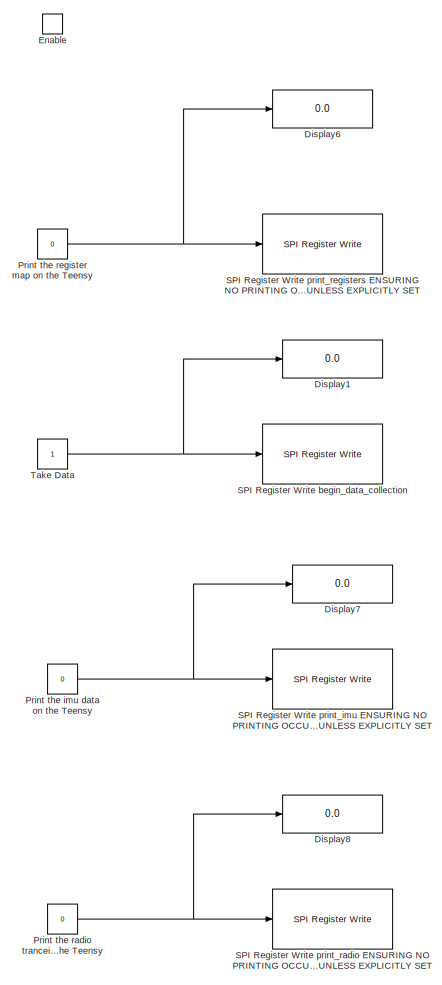
[diagram: Initialization Messages - part 1/2, full width, top band]
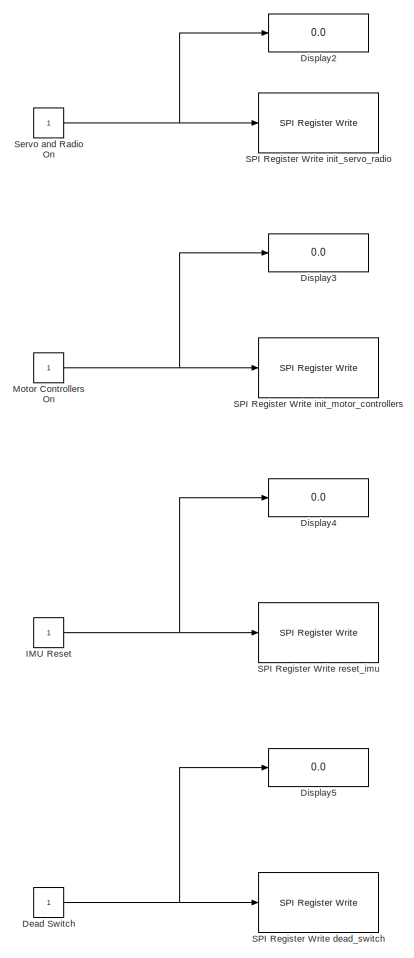
[diagram: Initialization Messages - part 2/2, full width, bottom band]
BLOCK [SubSystem] Initialization Messages
  Ports = [0, 0, 1]
  RequestExecContextInheritance = off
BLOCK [Constant] Initialization Messages/Dead Switch
  OutDataTypeStr = uint8
BLOCK [Display] Initialization Messages/Display1
  Decimation = 1
  Format = decimal (Stored Integer)
  Ports = [1]
BLOCK [Display] Initialization Messages/Display2
  Decimation = 1
  Format = decimal (Stored Integer)
  Ports = [1]
BLOCK [Display] Initialization Messages/Display3
  Decimation = 1
  Format = decimal (Stored Integer)
  Ports = [1]
BLOCK [Display] Initialization Messages/Display4
  Decimation = 1
  Format = decimal (Stored Integer)
  Ports = [1]
BLOCK [Display] Initialization Messages/Display5
  Decimation = 1
  Format = decimal (Stored Integer)
  Ports = [1]
BLOCK [Display] Initialization Messages/Display6
  Decimation = 1
  Format = decimal (Stored Integer)
  Ports = [1]
BLOCK [Display] Initialization Messages/Display7
  Decimation = 1
  Format = decimal (Stored Integer)
  Ports = [1]
BLOCK [Display] Initialization Messages/Display8
  Decimation = 1
  Format = decimal (Stored Integer)
  Ports = [1]
BLOCK [EnablePort] Initialization Messages/Enable
  Ports = []
BLOCK [Constant] Initialization Messages/IMU Reset
  OutDataTypeStr = uint8
BLOCK [Constant] Initialization Messages/Motor Controllers On
  OutDataTypeStr = uint8
BLOCK [Constant] Initialization Messages/Print the imu data on the Teensy
  OutDataTypeStr = uint8
  Value = 0
BLOCK [Constant] Initialization Messages/Print the radio tranceiver data on the Teensy
  OutDataTypeStr = uint8
  Value = 0
BLOCK [Constant] Initialization Messages/Print the register map on the Teensy
  OutDataTypeStr = uint8
  Value = 0
BLOCK [Reference] Initialization Messages/SPI Register Write begin_data_collection  REF=raspberrypilib/SPI Register Write
  Ports = [1]
  SourceBlock = raspberrypilib/SPI Register Write
  SourceProductBaseCode = RASPPI
  SourceProductName = Simulink Support Package for Raspberry Pi Hardware
  SourceType = codertarget.raspi.internal.SPIRegisterWrite
BLOCK [Reference] Initialization Messages/SPI Register Write dead_switch  REF=raspberrypilib/SPI Register Write
  Ports = [1]
  SourceBlock = raspberrypilib/SPI Register Write
  SourceProductBaseCode = RASPPI
  SourceProductName = Simulink Support Package for Raspberry Pi Hardware
  SourceType = codertarget.raspi.internal.SPIRegisterWrite
BLOCK [Reference] Initialization Messages/SPI Register Write init_motor_controllers  REF=raspberrypilib/SPI Register Write
  Ports = [1]
  SourceBlock = raspberrypilib/SPI Register Write
  SourceProductBaseCode = RASPPI
  SourceProductName = Simulink Support Package for Raspberry Pi Hardware
  SourceType = codertarget.raspi.internal.SPIRegisterWrite
BLOCK [Reference] Initialization Messages/SPI Register Write init_servo_radio  REF=raspberrypilib/SPI Register Write
  Ports = [1]
  SourceBlock = raspberrypilib/SPI Register Write
  SourceProductBaseCode = RASPPI
  SourceProductName = Simulink Support Package for Raspberry Pi Hardware
  SourceType = codertarget.raspi.internal.SPIRegisterWrite
BLOCK [Reference] Initialization Messages/SPI Register Write print_imu ENSURING NO PRINTING OCCURS DURING DYNAMIC OP UNLESS EXPLICITLY SET  REF=raspberrypilib/SPI Register Write
  Ports = [1]
  SourceBlock = raspberrypilib/SPI Register Write
  SourceProductBaseCode = RASPPI
  SourceProductName = Simulink Support Package for Raspberry Pi Hardware
  SourceType = codertarget.raspi.internal.SPIRegisterWrite
BLOCK [Reference] Initialization Messages/SPI Register Write print_radio ENSURING NO PRINTING OCCURS DURING DYNAMIC OP UNLESS EXPLICITLY SET  REF=raspberrypilib/SPI Register Write
  Ports = [1]
  SourceBlock = raspberrypilib/SPI Register Write
  SourceProductBaseCode = RASPPI
  SourceProductName = Simulink Support Package for Raspberry Pi Hardware
  SourceType = codertarget.raspi.internal.SPIRegisterWrite
BLOCK [Reference] Initialization Messages/SPI Register Write print_registers ENSURING NO PRINTING OCCURS DURING DYNAMIC OP UNLESS EXPLICITLY SET  REF=raspberrypilib/SPI Register Write
  Ports = [1]
  SourceBlock = raspberrypilib/SPI Register Write
  SourceProductBaseCode = RASPPI
  SourceProductName = Simulink Support Package for Raspberry Pi Hardware
  SourceType = codertarget.raspi.internal.SPIRegisterWrite
BLOCK [Reference] Initialization Messages/SPI Register Write reset_imu  REF=raspberrypilib/SPI Register Write
  Ports = [1]
  SourceBlock = raspberrypilib/SPI Register Write
  SourceProductBaseCode = RASPPI
  SourceProductName = Simulink Support Package for Raspberry Pi Hardware
  SourceType = codertarget.raspi.internal.SPIRegisterWrite
BLOCK [Constant] Initialization Messages/Servo and Radio On
  OutDataTypeStr = uint8
BLOCK [Constant] Initialization Messages/Take Data
  OutDataTypeStr = uint8
BLOCK [RelationalOperator] Relational Operator1
  InputSameDT = off
  Operator = >
  OutDataTypeStr = boolean
  Ports = [2, 1]
  RndMeth = Simplest
BLOCK [RelationalOperator] Relational Operator2
  InputSameDT = off
  Operator = <=
  OutDataTypeStr = boolean
  Ports = [2, 1]
  RndMeth = Simplest
BLOCK [Scope] Scope1
  Floating = off
  NumInputPorts = 1
  Ports = [1]
  ScopeSpecificationString = Simulink.scopes.TimeScopeBlockCfg('CurrentConfiguration', extmgr.ConfigurationSet(extmgr.Configuration('Core','General UI',true),extmgr.Configuration('Core','Source UI',true),extmgr.Configuration('Sources','WiredSimulink',true,'DataLoggingVariableName','ScopeData1'),extmgr.Configuration('Visuals','Time Domain',true,'SerializedDisplays',{struct('MinYLimReal','-0.125','MaxYLimReal','1.125','YLabelRe...<+1378ch>
BLOCK [Scope] Scope2
  Floating = off
  NumInputPorts = 1
  Ports = [1]
  ScopeSpecificationString = Simulink.scopes.TimeScopeBlockCfg('CurrentConfiguration', extmgr.ConfigurationSet(extmgr.Configuration('Core','General UI',true),extmgr.Configuration('Core','Source UI',true),extmgr.Configuration('Sources','WiredSimulink',true,'DataLoggingVariableName','ScopeData5'),extmgr.Configuration('Visuals','Time Domain',true),extmgr.Configuration('Tools','Plot Navigation',true),extmgr.Configuration('Tools',...<+40ch>
BLOCK [Switch] Switch1
  Criteria = u2 > Threshold
  InputSameDT = off
  SaturateOnIntegerOverflow = off
BLOCK [Switch] Switch2
  InputSameDT = off
  SaturateOnIntegerOverflow = off
ANNOTATION Control System: [e_v e_v_dot e_psi e_psidot]'
ANNOTATION Control System/Measurement To State Subsystem: psi
ANNOTATION Control System/Throttle and Steering Handler1: Can have the holding down the trigger as a condition for leaving the initialization code. THEN if the trigger is ever released, the code will stop running...may not want this after all, perhaps not for controllers without any integral action
ANNOTATION Control System/Throttle and Steering Handler1: DEAD SWITCH
ANNOTATION Control System/Throttle and Steering Handler1: MANUAL MODE THROTTLE
ANNOTATION Control System/Throttle and Steering Handler1: Note: If simulink loses connection (battery powered off) before the model is stopped, Simulink will freeze
LINE Clock1:1 -> Relational Operator1:1
LINE Clock2:1 -> Relational Operator2:1
LINE Constant3:1 -> Relational Operator1:2
LINE Constant4:1 -> Switch1:1
LINE Constant5:1 -> Switch1:3
LINE Constant6:1 -> Relational Operator2:2
LINE Constant7:1 -> Switch2:1
LINE Constant8:1 -> Switch2:3
NET Control System/Const Mot Vel:1 -> Control System/Gain:1, Control System/Throttle and Steering Handler1:2
LINE Control System/Correcting For Sign Convention1:1 -> Control System/Measurement To State Subsystem:2
LINE Control System/Correcting For Sign Convention:1 -> Control System/Measurement To State Subsystem:4
NET Control System/Desired Yaw Rate:1 -> Control System/Integrator:1, Control System/Measurement To State Subsystem:6, Control System/State-Space:1
LINE Control System/Gain1:1 -> Control System/Mux:3
LINE Control System/Gain2:1 -> Control System/Mux:4
NET Control System/Gain9:1 -> Control System/Radians to Steering Input:1, Control System/Scope5:1
LINE Control System/Gain:1 -> Control System/Measurement To State Subsystem:1
NET Control System/Integrator:1 -> Control System/Measurement To State Subsystem:5, Control System/Scope10:1
NET Control System/Measurement To State Subsystem/Gain1:1 -> Control System/Measurement To State Subsystem/Scope3:1, Control System/Measurement To State Subsystem/Sum1:1
LINE Control System/Measurement To State Subsystem/Gain2:1 -> Control System/Measurement To State Subsystem/Multiply1:1
NET Control System/Measurement To State Subsystem/Gain:1 -> Control System/Measurement To State Subsystem/MATLAB Function:1, Control System/Measurement To State Subsystem/Scope11:1
LINE Control System/Measurement To State Subsystem/Integrator1:1 -> Control System/Measurement To State Subsystem/Sum4:2
NET Control System/Measurement To State Subsystem/MATLAB Function:1 -> Control System/Measurement To State Subsystem/Multiply1:2, Control System/Measurement To State Subsystem/e_psi:1
LINE Control System/Measurement To State Subsystem/Multiply1:1 -> Control System/Measurement To State Subsystem/Sum4:1
NET Control System/Measurement To State Subsystem/Sum1:1 -> Control System/Measurement To State Subsystem/Scope7:1, Control System/Measurement To State Subsystem/e_psi_dot:1
LINE Control System/Measurement To State Subsystem/Sum4:1 -> Control System/Measurement To State Subsystem/e_v:1
LINE Control System/Measurement To State Subsystem/Vehicle Longitudinal Velocity:1 -> Control System/Measurement To State Subsystem/Gain2:1
LINE Control System/Measurement To State Subsystem/acc_y :1 -> Control System/Measurement To State Subsystem/Integrator1:1
LINE Control System/Measurement To State Subsystem/euler_z:1 -> Control System/Measurement To State Subsystem/Gain:1
NET Control System/Measurement To State Subsystem/gyr_z:1 -> Control System/Measurement To State Subsystem/Gain1:1, Control System/Measurement To State Subsystem/Scope2:1
LINE Control System/Measurement To State Subsystem/psi_d:1 -> Control System/Measurement To State Subsystem/MATLAB Function:2
LINE Control System/Measurement To State Subsystem/psi_dot_d:1 -> Control System/Measurement To State Subsystem/Sum1:2
NET Control System/Measurement To State Subsystem:2 -> Control System/Gain1:1, Control System/Scope2:1
LINE Control System/Measurement To State Subsystem:3 -> Control System/Gain2:1
LINE Control System/Mux:1 -> Control System/Gain9:1
LINE Control System/Radians to Steering Input:1 -> Control System/Saturation:1
LINE Control System/SSIV Hardware Communication/Data Type Conversion1:1 -> Control System/SSIV Hardware Communication/throttle_left_front Write Message (Master --> Slave):1
LINE Control System/SSIV Hardware Communication/Data Type Conversion2:1 -> Control System/SSIV Hardware Communication/throttle_right_rear Write Message (Master --> Slave):1
LINE Control System/SSIV Hardware Communication/Data Type Conversion3:1 -> Control System/SSIV Hardware Communication/servo_out Write Message (Master --> Slave):1
LINE Control System/SSIV Hardware Communication/Data Type Conversion4:1 -> Control System/SSIV Hardware Communication/throttle_left_rear Write Message (Master --> Slave):1
LINE Control System/SSIV Hardware Communication/Data Type Conversion:1 -> Control System/SSIV Hardware Communication/throttle_right_front Write Message (Master --> Slave):1
NET Control System/SSIV Hardware Communication/Flipping Sign Convention1:1 -> Control System/SSIV Hardware Communication/Euler Angles:2, Control System/SSIV Hardware Communication/Read Message3:1, Control System/SSIV Hardware Communication/euler_roll:1
NET Control System/SSIV Hardware Communication/Flipping Sign Convention2:1 -> Control System/SSIV Hardware Communication/Euler Angles:3, Control System/SSIV Hardware Communication/Read Message6:1, Control System/SSIV Hardware Communication/euler_pitch:1
LINE Control System/SSIV Hardware Communication/SPI Master Transfer Read acc_x:1 -> Control System/SSIV Hardware Communication/acc_x return message (Slave --> Master):1
LINE Control System/SSIV Hardware Communication/SPI Master Transfer Read acc_y:1 -> Control System/SSIV Hardware Communication/acc_y return message (Slave --> Master):1
LINE Control System/SSIV Hardware Communication/SPI Master Transfer Read acc_z:1 -> Control System/SSIV Hardware Communication/acc_z return message (Slave --> Master):1
LINE Control System/SSIV Hardware Communication/SPI Master Transfer Read euler_heading:1 -> Control System/SSIV Hardware Communication/euler_heading return message (Slave --> Master):1
LINE Control System/SSIV Hardware Communication/SPI Master Transfer Read euler_pitch:1 -> Control System/SSIV Hardware Communication/euler_pitch return message (Slave --> Master):1
LINE Control System/SSIV Hardware Communication/SPI Master Transfer Read euler_roll:1 -> Control System/SSIV Hardware Communication/euler_roll return message (Slave --> Master):1
LINE Control System/SSIV Hardware Communication/SPI Master Transfer Read gyr_x:1 -> Control System/SSIV Hardware Communication/gyr_x return message (Slave --> Master):1
LINE Control System/SSIV Hardware Communication/SPI Master Transfer Read gyr_y:1 -> Control System/SSIV Hardware Communication/gyr_y return message (Slave --> Master):1
LINE Control System/SSIV Hardware Communication/SPI Master Transfer Read gyr_z:1 -> Control System/SSIV Hardware Communication/gyr_z return message (Slave --> Master):1
LINE Control System/SSIV Hardware Communication/SPI Master Transfer Read radio_steering:1 -> Control System/SSIV Hardware Communication/radio_steering return message (Slave --> Master):1
LINE Control System/SSIV Hardware Communication/SPI Master Transfer Read radio_throttle:1 -> Control System/SSIV Hardware Communication/radio_throttle return message (Slave --> Master):1
LINE Control System/SSIV Hardware Communication/acc_x Address Number:1 -> Control System/SSIV Hardware Communication/acc_x read message (Master --> Slave):1
LINE Control System/SSIV Hardware Communication/acc_x read message (Master --> Slave)/Inport:1 -> Control System/SSIV Hardware Communication/acc_x read message (Master --> Slave)/Read Bit Set:1
LINE Control System/SSIV Hardware Communication/acc_x read message (Master --> Slave)/Mux:1 -> Control System/SSIV Hardware Communication/acc_x read message (Master --> Slave)/Out1:1
LINE Control System/SSIV Hardware Communication/acc_x read message (Master --> Slave)/Read Bit Set:1 -> Control System/SSIV Hardware Communication/acc_x read message (Master --> Slave)/Mux:1
LINE Control System/SSIV Hardware Communication/acc_x read message (Master --> Slave)/uint8_t 1:1 -> Control System/SSIV Hardware Communication/acc_x read message (Master --> Slave)/Mux:2
LINE Control System/SSIV Hardware Communication/acc_x read message (Master --> Slave)/uint8_t 2:1 -> Control System/SSIV Hardware Communication/acc_x read message (Master --> Slave)/Mux:3
LINE Control System/SSIV Hardware Communication/acc_x read message (Master --> Slave)/uint8_t 3:1 -> Control System/SSIV Hardware Communication/acc_x read message (Master --> Slave)/Mux:4
LINE Control System/SSIV Hardware Communication/acc_x read message (Master --> Slave):1 -> Control System/SSIV Hardware Communication/SPI Master Transfer Read acc_x:1
LINE Control System/SSIV Hardware Communication/acc_x return message (Slave --> Master)/8 bytes concatinated converted to double:1 -> Control System/SSIV Hardware Communication/acc_x return message (Slave --> Master)/Acceleration Int to Double Scale Factor:1
NET Control System/SSIV Hardware Communication/acc_x return message (Slave --> Master)/Acceleration Int to Double Scale Factor:1 -> Control System/SSIV Hardware Communication/acc_x return message (Slave --> Master)/Display1:1, Control System/SSIV Hardware Communication/acc_x return message (Slave --> Master)/acc_x:1
LINE Control System/SSIV Hardware Communication/acc_x return message (Slave --> Master)/Bit Concat:1 -> Control System/SSIV Hardware Communication/acc_x return message (Slave --> Master)/Data Type Conversion:1
LINE Control System/SSIV Hardware Communication/acc_x return message (Slave --> Master)/Data Type Conversion:1 -> Control System/SSIV Hardware Communication/acc_x return message (Slave --> Master)/8 bytes concatinated converted to double:1
LINE Control System/SSIV Hardware Communication/acc_x return message (Slave --> Master)/Demux:1 -> Control System/SSIV Hardware Communication/acc_x return message (Slave --> Master)/Display:1
LINE Control System/SSIV Hardware Communication/acc_x return message (Slave --> Master)/Demux:2 -> Control System/SSIV Hardware Communication/acc_x return message (Slave --> Master)/Display2:1
LINE Control System/SSIV Hardware Communication/acc_x return message (Slave --> Master)/Demux:3 -> Control System/SSIV Hardware Communication/acc_x return message (Slave --> Master)/Bit Concat:2
LINE Control System/SSIV Hardware Communication/acc_x return message (Slave --> Master)/Demux:4 -> Control System/SSIV Hardware Communication/acc_x return message (Slave --> Master)/Bit Concat:1
NET Control System/SSIV Hardware Communication/acc_x return message (Slave --> Master)/In1:1 -> Control System/SSIV Hardware Communication/acc_x return message (Slave --> Master)/Bytes of the return message:1, Control System/SSIV Hardware Communication/acc_x return message (Slave --> Master)/Demux:1
NET Control System/SSIV Hardware Communication/acc_x return message (Slave --> Master):1 -> Control System/SSIV Hardware Communication/Read Message7:1, Control System/SSIV Hardware Communication/acc_x:1, Control System/SSIV Hardware Communication/x-direction:1
LINE Control System/SSIV Hardware Communication/acc_y Address Number:1 -> Control System/SSIV Hardware Communication/acc_y read message (Master --> Slave):1
LINE Control System/SSIV Hardware Communication/acc_y read message (Master --> Slave)/Inport:1 -> Control System/SSIV Hardware Communication/acc_y read message (Master --> Slave)/Read Bit Set:1
LINE Control System/SSIV Hardware Communication/acc_y read message (Master --> Slave)/Mux:1 -> Control System/SSIV Hardware Communication/acc_y read message (Master --> Slave)/Out1:1
LINE Control System/SSIV Hardware Communication/acc_y read message (Master --> Slave)/Read Bit Set:1 -> Control System/SSIV Hardware Communication/acc_y read message (Master --> Slave)/Mux:1
LINE Control System/SSIV Hardware Communication/acc_y read message (Master --> Slave)/uint8_t 1:1 -> Control System/SSIV Hardware Communication/acc_y read message (Master --> Slave)/Mux:2
LINE Control System/SSIV Hardware Communication/acc_y read message (Master --> Slave)/uint8_t 2:1 -> Control System/SSIV Hardware Communication/acc_y read message (Master --> Slave)/Mux:3
LINE Control System/SSIV Hardware Communication/acc_y read message (Master --> Slave)/uint8_t 3:1 -> Control System/SSIV Hardware Communication/acc_y read message (Master --> Slave)/Mux:4
LINE Control System/SSIV Hardware Communication/acc_y read message (Master --> Slave):1 -> Control System/SSIV Hardware Communication/SPI Master Transfer Read acc_y:1
LINE Control System/SSIV Hardware Communication/acc_y return message (Slave --> Master)/8 bytes concatinated converted to double:1 -> Control System/SSIV Hardware Communication/acc_y return message (Slave --> Master)/Acceleration Int to Double Scale Factor:1
NET Control System/SSIV Hardware Communication/acc_y return message (Slave --> Master)/Acceleration Int to Double Scale Factor:1 -> Control System/SSIV Hardware Communication/acc_y return message (Slave --> Master)/Display1:1, Control System/SSIV Hardware Communication/acc_y return message (Slave --> Master)/acc_y:1
LINE Control System/SSIV Hardware Communication/acc_y return message (Slave --> Master)/Bit Concat:1 -> Control System/SSIV Hardware Communication/acc_y return message (Slave --> Master)/Data Type Conversion:1
LINE Control System/SSIV Hardware Communication/acc_y return message (Slave --> Master)/Data Type Conversion:1 -> Control System/SSIV Hardware Communication/acc_y return message (Slave --> Master)/8 bytes concatinated converted to double:1
LINE Control System/SSIV Hardware Communication/acc_y return message (Slave --> Master)/Demux:1 -> Control System/SSIV Hardware Communication/acc_y return message (Slave --> Master)/Display:1
LINE Control System/SSIV Hardware Communication/acc_y return message (Slave --> Master)/Demux:2 -> Control System/SSIV Hardware Communication/acc_y return message (Slave --> Master)/Display2:1
LINE Control System/SSIV Hardware Communication/acc_y return message (Slave --> Master)/Demux:3 -> Control System/SSIV Hardware Communication/acc_y return message (Slave --> Master)/Bit Concat:2
LINE Control System/SSIV Hardware Communication/acc_y return message (Slave --> Master)/Demux:4 -> Control System/SSIV Hardware Communication/acc_y return message (Slave --> Master)/Bit Concat:1
NET Control System/SSIV Hardware Communication/acc_y return message (Slave --> Master)/In1:1 -> Control System/SSIV Hardware Communication/acc_y return message (Slave --> Master)/Bytes of the return message:1, Control System/SSIV Hardware Communication/acc_y return message (Slave --> Master)/Demux:1
NET Control System/SSIV Hardware Communication/acc_y return message (Slave --> Master):1 -> Control System/SSIV Hardware Communication/Read Message8:1, Control System/SSIV Hardware Communication/acc_y:1, Control System/SSIV Hardware Communication/y-direction:1
LINE Control System/SSIV Hardware Communication/acc_z Address Number:1 -> Control System/SSIV Hardware Communication/acc_z read message (Master --> Slave):1
LINE Control System/SSIV Hardware Communication/acc_z read message (Master --> Slave)/Inport:1 -> Control System/SSIV Hardware Communication/acc_z read message (Master --> Slave)/Read Bit Set:1
LINE Control System/SSIV Hardware Communication/acc_z read message (Master --> Slave)/Mux:1 -> Control System/SSIV Hardware Communication/acc_z read message (Master --> Slave)/Out1:1
LINE Control System/SSIV Hardware Communication/acc_z read message (Master --> Slave)/Read Bit Set:1 -> Control System/SSIV Hardware Communication/acc_z read message (Master --> Slave)/Mux:1
LINE Control System/SSIV Hardware Communication/acc_z read message (Master --> Slave)/uint8_t 1:1 -> Control System/SSIV Hardware Communication/acc_z read message (Master --> Slave)/Mux:2
LINE Control System/SSIV Hardware Communication/acc_z read message (Master --> Slave)/uint8_t 2:1 -> Control System/SSIV Hardware Communication/acc_z read message (Master --> Slave)/Mux:3
LINE Control System/SSIV Hardware Communication/acc_z read message (Master --> Slave)/uint8_t 3:1 -> Control System/SSIV Hardware Communication/acc_z read message (Master --> Slave)/Mux:4
LINE Control System/SSIV Hardware Communication/acc_z read message (Master --> Slave):1 -> Control System/SSIV Hardware Communication/SPI Master Transfer Read acc_z:1
LINE Control System/SSIV Hardware Communication/acc_z return message (Slave --> Master)/8 bytes concatinated converted to double:1 -> Control System/SSIV Hardware Communication/acc_z return message (Slave --> Master)/Acceleration Int to Double Scale Factor:1
NET Control System/SSIV Hardware Communication/acc_z return message (Slave --> Master)/Acceleration Int to Double Scale Factor:1 -> Control System/SSIV Hardware Communication/acc_z return message (Slave --> Master)/Display1:1, Control System/SSIV Hardware Communication/acc_z return message (Slave --> Master)/acc_z:1
LINE Control System/SSIV Hardware Communication/acc_z return message (Slave --> Master)/Bit Concat:1 -> Control System/SSIV Hardware Communication/acc_z return message (Slave --> Master)/Data Type Conversion:1
LINE Control System/SSIV Hardware Communication/acc_z return message (Slave --> Master)/Data Type Conversion:1 -> Control System/SSIV Hardware Communication/acc_z return message (Slave --> Master)/8 bytes concatinated converted to double:1
LINE Control System/SSIV Hardware Communication/acc_z return message (Slave --> Master)/Demux:1 -> Control System/SSIV Hardware Communication/acc_z return message (Slave --> Master)/Display:1
LINE Control System/SSIV Hardware Communication/acc_z return message (Slave --> Master)/Demux:2 -> Control System/SSIV Hardware Communication/acc_z return message (Slave --> Master)/Display2:1
LINE Control System/SSIV Hardware Communication/acc_z return message (Slave --> Master)/Demux:3 -> Control System/SSIV Hardware Communication/acc_z return message (Slave --> Master)/Bit Concat:2
LINE Control System/SSIV Hardware Communication/acc_z return message (Slave --> Master)/Demux:4 -> Control System/SSIV Hardware Communication/acc_z return message (Slave --> Master)/Bit Concat:1
NET Control System/SSIV Hardware Communication/acc_z return message (Slave --> Master)/In1:1 -> Control System/SSIV Hardware Communication/acc_z return message (Slave --> Master)/Bytes of the return message:1, Control System/SSIV Hardware Communication/acc_z return message (Slave --> Master)/Demux:1
NET Control System/SSIV Hardware Communication/acc_z return message (Slave --> Master):1 -> Control System/SSIV Hardware Communication/Read Message9:1, Control System/SSIV Hardware Communication/acc_z:1, Control System/SSIV Hardware Communication/z-direction:1
LINE Control System/SSIV Hardware Communication/euler_heading Address Number:1 -> Control System/SSIV Hardware Communication/euler_heading read message (Master --> Slave):1
LINE Control System/SSIV Hardware Communication/euler_heading read message (Master --> Slave)/Inport:1 -> Control System/SSIV Hardware Communication/euler_heading read message (Master --> Slave)/Read Bit Set:1
LINE Control System/SSIV Hardware Communication/euler_heading read message (Master --> Slave)/Mux:1 -> Control System/SSIV Hardware Communication/euler_heading read message (Master --> Slave)/Out1:1
LINE Control System/SSIV Hardware Communication/euler_heading read message (Master --> Slave)/Read Bit Set:1 -> Control System/SSIV Hardware Communication/euler_heading read message (Master --> Slave)/Mux:1
LINE Control System/SSIV Hardware Communication/euler_heading read message (Master --> Slave)/uint8_t  1:1 -> Control System/SSIV Hardware Communication/euler_heading read message (Master --> Slave)/Mux:2
LINE Control System/SSIV Hardware Communication/euler_heading read message (Master --> Slave)/uint8_t  2:1 -> Control System/SSIV Hardware Communication/euler_heading read message (Master --> Slave)/Mux:3
LINE Control System/SSIV Hardware Communication/euler_heading read message (Master --> Slave)/uint8_t  3:1 -> Control System/SSIV Hardware Communication/euler_heading read message (Master --> Slave)/Mux:4
LINE Control System/SSIV Hardware Communication/euler_heading read message (Master --> Slave):1 -> Control System/SSIV Hardware Communication/SPI Master Transfer Read euler_heading:1
LINE Control System/SSIV Hardware Communication/euler_heading return message (Slave --> Master)/Bit Concat:1 -> Control System/SSIV Hardware Communication/euler_heading return message (Slave --> Master)/Data Type Conversion:1
NET Control System/SSIV Hardware Communication/euler_heading return message (Slave --> Master)/Data Type Conversion:1 -> Control System/SSIV Hardware Communication/euler_heading return message (Slave --> Master)/Scope:1, Control System/SSIV Hardware Communication/euler_heading return message (Slave --> Master)/concatinate bytes and convert to double:1
LINE Control System/SSIV Hardware Communication/euler_heading return message (Slave --> Master)/Demux:1 -> Control System/SSIV Hardware Communication/euler_heading return message (Slave --> Master)/Display:1
LINE Control System/SSIV Hardware Communication/euler_heading return message (Slave --> Master)/Demux:2 -> Control System/SSIV Hardware Communication/euler_heading return message (Slave --> Master)/Display2:1
LINE Control System/SSIV Hardware Communication/euler_heading return message (Slave --> Master)/Demux:3 -> Control System/SSIV Hardware Communication/euler_heading return message (Slave --> Master)/Bit Concat:2
LINE Control System/SSIV Hardware Communication/euler_heading return message (Slave --> Master)/Demux:4 -> Control System/SSIV Hardware Communication/euler_heading return message (Slave --> Master)/Bit Concat:1
NET Control System/SSIV Hardware Communication/euler_heading return message (Slave --> Master)/Euler Int to Double Scale Factor:1 -> Control System/SSIV Hardware Communication/euler_heading return message (Slave --> Master)/Display1:1, Control System/SSIV Hardware Communication/euler_heading return message (Slave --> Master)/euler_heading:1
NET Control System/SSIV Hardware Communication/euler_heading return message (Slave --> Master)/In1:1 -> Control System/SSIV Hardware Communication/euler_heading return message (Slave --> Master)/Bytes of the return message:1, Control System/SSIV Hardware Communication/euler_heading return message (Slave --> Master)/Demux:1, Control System/SSIV Hardware Communication/euler_heading return message (Slave --> Master)/Scope1:1
LINE Control System/SSIV Hardware Communication/euler_heading return message (Slave --> Master)/concatinate bytes and convert to double:1 -> Control System/SSIV Hardware Communication/euler_heading return message (Slave --> Master)/Euler Int to Double Scale Factor:1
NET Control System/SSIV Hardware Communication/euler_heading return message (Slave --> Master):1 -> Control System/SSIV Hardware Communication/Euler Angles:1, Control System/SSIV Hardware Communication/Read Message2:1, Control System/SSIV Hardware Communication/euler_heading:1
LINE Control System/SSIV Hardware Communication/euler_pitch Address Number:1 -> Control System/SSIV Hardware Communication/euler_pitch read message (Master --> Slave):1
LINE Control System/SSIV Hardware Communication/euler_pitch read message (Master --> Slave)/Inport:1 -> Control System/SSIV Hardware Communication/euler_pitch read message (Master --> Slave)/Read Bit Set:1
LINE Control System/SSIV Hardware Communication/euler_pitch read message (Master --> Slave)/Mux:1 -> Control System/SSIV Hardware Communication/euler_pitch read message (Master --> Slave)/Out1:1
LINE Control System/SSIV Hardware Communication/euler_pitch read message (Master --> Slave)/Read Bit Set:1 -> Control System/SSIV Hardware Communication/euler_pitch read message (Master --> Slave)/Mux:1
LINE Control System/SSIV Hardware Communication/euler_pitch read message (Master --> Slave)/uint8_t 1:1 -> Control System/SSIV Hardware Communication/euler_pitch read message (Master --> Slave)/Mux:2
LINE Control System/SSIV Hardware Communication/euler_pitch read message (Master --> Slave)/uint8_t 2:1 -> Control System/SSIV Hardware Communication/euler_pitch read message (Master --> Slave)/Mux:3
LINE Control System/SSIV Hardware Communication/euler_pitch read message (Master --> Slave)/uint8_t 3:1 -> Control System/SSIV Hardware Communication/euler_pitch read message (Master --> Slave)/Mux:4
LINE Control System/SSIV Hardware Communication/euler_pitch read message (Master --> Slave):1 -> Control System/SSIV Hardware Communication/SPI Master Transfer Read euler_pitch:1
LINE Control System/SSIV Hardware Communication/euler_pitch return message (Slave --> Master)/8 bytes concatinated converted to double:1 -> Control System/SSIV Hardware Communication/euler_pitch return message (Slave --> Master)/Euler Int to Double Scale Factor:1
LINE Control System/SSIV Hardware Communication/euler_pitch return message (Slave --> Master)/Bit Concat:1 -> Control System/SSIV Hardware Communication/euler_pitch return message (Slave --> Master)/Data Type Conversion:1
NET Control System/SSIV Hardware Communication/euler_pitch return message (Slave --> Master)/Data Type Conversion:1 -> Control System/SSIV Hardware Communication/euler_pitch return message (Slave --> Master)/8 bytes concatinated converted to double:1, Control System/SSIV Hardware Communication/euler_pitch return message (Slave --> Master)/Scope:1
LINE Control System/SSIV Hardware Communication/euler_pitch return message (Slave --> Master)/Demux:1 -> Control System/SSIV Hardware Communication/euler_pitch return message (Slave --> Master)/Display:1
LINE Control System/SSIV Hardware Communication/euler_pitch return message (Slave --> Master)/Demux:2 -> Control System/SSIV Hardware Communication/euler_pitch return message (Slave --> Master)/Display2:1
LINE Control System/SSIV Hardware Communication/euler_pitch return message (Slave --> Master)/Demux:3 -> Control System/SSIV Hardware Communication/euler_pitch return message (Slave --> Master)/Bit Concat:2
LINE Control System/SSIV Hardware Communication/euler_pitch return message (Slave --> Master)/Demux:4 -> Control System/SSIV Hardware Communication/euler_pitch return message (Slave --> Master)/Bit Concat:1
NET Control System/SSIV Hardware Communication/euler_pitch return message (Slave --> Master)/Euler Int to Double Scale Factor:1 -> Control System/SSIV Hardware Communication/euler_pitch return message (Slave --> Master)/Display1:1, Control System/SSIV Hardware Communication/euler_pitch return message (Slave --> Master)/euler_pitch:1
NET Control System/SSIV Hardware Communication/euler_pitch return message (Slave --> Master)/In1:1 -> Control System/SSIV Hardware Communication/euler_pitch return message (Slave --> Master)/Bytes of the return message:1, Control System/SSIV Hardware Communication/euler_pitch return message (Slave --> Master)/Demux:1
LINE Control System/SSIV Hardware Communication/euler_pitch return message (Slave --> Master):1 -> Control System/SSIV Hardware Communication/Flipping Sign Convention2:1
LINE Control System/SSIV Hardware Communication/euler_roll Address Number:1 -> Control System/SSIV Hardware Communication/euler_roll read message (Master --> Slave):1
LINE Control System/SSIV Hardware Communication/euler_roll read message (Master --> Slave)/Inport:1 -> Control System/SSIV Hardware Communication/euler_roll read message (Master --> Slave)/Read Bit Set:1
LINE Control System/SSIV Hardware Communication/euler_roll read message (Master --> Slave)/Mux:1 -> Control System/SSIV Hardware Communication/euler_roll read message (Master --> Slave)/Out1:1
LINE Control System/SSIV Hardware Communication/euler_roll read message (Master --> Slave)/Read Bit Set:1 -> Control System/SSIV Hardware Communication/euler_roll read message (Master --> Slave)/Mux:1
LINE Control System/SSIV Hardware Communication/euler_roll read message (Master --> Slave)/uint8_t  1:1 -> Control System/SSIV Hardware Communication/euler_roll read message (Master --> Slave)/Mux:2
LINE Control System/SSIV Hardware Communication/euler_roll read message (Master --> Slave)/uint8_t  2:1 -> Control System/SSIV Hardware Communication/euler_roll read message (Master --> Slave)/Mux:3
LINE Control System/SSIV Hardware Communication/euler_roll read message (Master --> Slave)/uint8_t  3:1 -> Control System/SSIV Hardware Communication/euler_roll read message (Master --> Slave)/Mux:4
LINE Control System/SSIV Hardware Communication/euler_roll read message (Master --> Slave):1 -> Control System/SSIV Hardware Communication/SPI Master Transfer Read euler_roll:1
LINE Control System/SSIV Hardware Communication/euler_roll return message (Slave --> Master)/8 bytes concatinated converted to double:1 -> Control System/SSIV Hardware Communication/euler_roll return message (Slave --> Master)/Euler Int to Double Scale Factor:1
LINE Control System/SSIV Hardware Communication/euler_roll return message (Slave --> Master)/Bit Concat:1 -> Control System/SSIV Hardware Communication/euler_roll return message (Slave --> Master)/Data Type Conversion:1
NET Control System/SSIV Hardware Communication/euler_roll return message (Slave --> Master)/Data Type Conversion:1 -> Control System/SSIV Hardware Communication/euler_roll return message (Slave --> Master)/8 bytes concatinated converted to double:1, Control System/SSIV Hardware Communication/euler_roll return message (Slave --> Master)/Scope:1
LINE Control System/SSIV Hardware Communication/euler_roll return message (Slave --> Master)/Demux:1 -> Control System/SSIV Hardware Communication/euler_roll return message (Slave --> Master)/Display:1
LINE Control System/SSIV Hardware Communication/euler_roll return message (Slave --> Master)/Demux:2 -> Control System/SSIV Hardware Communication/euler_roll return message (Slave --> Master)/Display2:1
LINE Control System/SSIV Hardware Communication/euler_roll return message (Slave --> Master)/Demux:3 -> Control System/SSIV Hardware Communication/euler_roll return message (Slave --> Master)/Bit Concat:2
LINE Control System/SSIV Hardware Communication/euler_roll return message (Slave --> Master)/Demux:4 -> Control System/SSIV Hardware Communication/euler_roll return message (Slave --> Master)/Bit Concat:1
NET Control System/SSIV Hardware Communication/euler_roll return message (Slave --> Master)/Euler Int to Double Scale Factor:1 -> Control System/SSIV Hardware Communication/euler_roll return message (Slave --> Master)/Display1:1, Control System/SSIV Hardware Communication/euler_roll return message (Slave --> Master)/euler_roll:1
NET Control System/SSIV Hardware Communication/euler_roll return message (Slave --> Master)/In1:1 -> Control System/SSIV Hardware Communication/euler_roll return message (Slave --> Master)/Bytes of the return message:1, Control System/SSIV Hardware Communication/euler_roll return message (Slave --> Master)/Demux:1
LINE Control System/SSIV Hardware Communication/euler_roll return message (Slave --> Master):1 -> Control System/SSIV Hardware Communication/Flipping Sign Convention1:1
LINE Control System/SSIV Hardware Communication/gyr_x Address Number:1 -> Control System/SSIV Hardware Communication/gyr_x read message (Master --> Slave):1
LINE Control System/SSIV Hardware Communication/gyr_x read message (Master --> Slave)/Inport:1 -> Control System/SSIV Hardware Communication/gyr_x read message (Master --> Slave)/Read Bit Set:1
LINE Control System/SSIV Hardware Communication/gyr_x read message (Master --> Slave)/Mux:1 -> Control System/SSIV Hardware Communication/gyr_x read message (Master --> Slave)/Out1:1
LINE Control System/SSIV Hardware Communication/gyr_x read message (Master --> Slave)/Read Bit Set:1 -> Control System/SSIV Hardware Communication/gyr_x read message (Master --> Slave)/Mux:1
LINE Control System/SSIV Hardware Communication/gyr_x read message (Master --> Slave)/uint8_t 1:1 -> Control System/SSIV Hardware Communication/gyr_x read message (Master --> Slave)/Mux:2
LINE Control System/SSIV Hardware Communication/gyr_x read message (Master --> Slave)/uint8_t 2:1 -> Control System/SSIV Hardware Communication/gyr_x read message (Master --> Slave)/Mux:3
LINE Control System/SSIV Hardware Communication/gyr_x read message (Master --> Slave)/uint8_t 3:1 -> Control System/SSIV Hardware Communication/gyr_x read message (Master --> Slave)/Mux:4
LINE Control System/SSIV Hardware Communication/gyr_x read message (Master --> Slave):1 -> Control System/SSIV Hardware Communication/SPI Master Transfer Read gyr_x:1
LINE Control System/SSIV Hardware Communication/gyr_x return message (Slave --> Master)/8 bytes concatinated converted to double:1 -> Control System/SSIV Hardware Communication/gyr_x return message (Slave --> Master)/Gyroscope Int to Double Scale Factor:1
LINE Control System/SSIV Hardware Communication/gyr_x return message (Slave --> Master)/Bit Concat:1 -> Control System/SSIV Hardware Communication/gyr_x return message (Slave --> Master)/Data Type Conversion:1
LINE Control System/SSIV Hardware Communication/gyr_x return message (Slave --> Master)/Data Type Conversion:1 -> Control System/SSIV Hardware Communication/gyr_x return message (Slave --> Master)/8 bytes concatinated converted to double:1
LINE Control System/SSIV Hardware Communication/gyr_x return message (Slave --> Master)/Demux:1 -> Control System/SSIV Hardware Communication/gyr_x return message (Slave --> Master)/Display:1
LINE Control System/SSIV Hardware Communication/gyr_x return message (Slave --> Master)/Demux:2 -> Control System/SSIV Hardware Communication/gyr_x return message (Slave --> Master)/Display2:1
LINE Control System/SSIV Hardware Communication/gyr_x return message (Slave --> Master)/Demux:3 -> Control System/SSIV Hardware Communication/gyr_x return message (Slave --> Master)/Bit Concat:2
LINE Control System/SSIV Hardware Communication/gyr_x return message (Slave --> Master)/Demux:4 -> Control System/SSIV Hardware Communication/gyr_x return message (Slave --> Master)/Bit Concat:1
NET Control System/SSIV Hardware Communication/gyr_x return message (Slave --> Master)/Gyroscope Int to Double Scale Factor:1 -> Control System/SSIV Hardware Communication/gyr_x return message (Slave --> Master)/Display1:1, Control System/SSIV Hardware Communication/gyr_x return message (Slave --> Master)/gyr_x:1
NET Control System/SSIV Hardware Communication/gyr_x return message (Slave --> Master)/In1:1 -> Control System/SSIV Hardware Communication/gyr_x return message (Slave --> Master)/Bytes of the return message:1, Control System/SSIV Hardware Communication/gyr_x return message (Slave --> Master)/Demux:1
NET Control System/SSIV Hardware Communication/gyr_x return message (Slave --> Master):1 -> Control System/SSIV Hardware Communication/Read Message10:1, Control System/SSIV Hardware Communication/gyr_x:1, Control System/SSIV Hardware Communication/x-direction:2
LINE Control System/SSIV Hardware Communication/gyr_y Address Number :1 -> Control System/SSIV Hardware Communication/gyr_y read message (Master --> Slave):1
LINE Control System/SSIV Hardware Communication/gyr_y read message (Master --> Slave)/Inport:1 -> Control System/SSIV Hardware Communication/gyr_y read message (Master --> Slave)/Read Bit Set:1
LINE Control System/SSIV Hardware Communication/gyr_y read message (Master --> Slave)/Mux:1 -> Control System/SSIV Hardware Communication/gyr_y read message (Master --> Slave)/Out1:1
LINE Control System/SSIV Hardware Communication/gyr_y read message (Master --> Slave)/Read Bit Set:1 -> Control System/SSIV Hardware Communication/gyr_y read message (Master --> Slave)/Mux:1
LINE Control System/SSIV Hardware Communication/gyr_y read message (Master --> Slave)/uint8_t 1:1 -> Control System/SSIV Hardware Communication/gyr_y read message (Master --> Slave)/Mux:2
LINE Control System/SSIV Hardware Communication/gyr_y read message (Master --> Slave)/uint8_t 2:1 -> Control System/SSIV Hardware Communication/gyr_y read message (Master --> Slave)/Mux:3
LINE Control System/SSIV Hardware Communication/gyr_y read message (Master --> Slave)/uint8_t 3:1 -> Control System/SSIV Hardware Communication/gyr_y read message (Master --> Slave)/Mux:4
LINE Control System/SSIV Hardware Communication/gyr_y read message (Master --> Slave):1 -> Control System/SSIV Hardware Communication/SPI Master Transfer Read gyr_y:1
LINE Control System/SSIV Hardware Communication/gyr_y return message (Slave --> Master)/8 bytes concatinated converted to double:1 -> Control System/SSIV Hardware Communication/gyr_y return message (Slave --> Master)/Gyroscope Int to Double Scale Factor:1
LINE Control System/SSIV Hardware Communication/gyr_y return message (Slave --> Master)/Bit Concat:1 -> Control System/SSIV Hardware Communication/gyr_y return message (Slave --> Master)/Data Type Conversion:1
LINE Control System/SSIV Hardware Communication/gyr_y return message (Slave --> Master)/Data Type Conversion:1 -> Control System/SSIV Hardware Communication/gyr_y return message (Slave --> Master)/8 bytes concatinated converted to double:1
LINE Control System/SSIV Hardware Communication/gyr_y return message (Slave --> Master)/Demux:1 -> Control System/SSIV Hardware Communication/gyr_y return message (Slave --> Master)/Display:1
LINE Control System/SSIV Hardware Communication/gyr_y return message (Slave --> Master)/Demux:2 -> Control System/SSIV Hardware Communication/gyr_y return message (Slave --> Master)/Display2:1
LINE Control System/SSIV Hardware Communication/gyr_y return message (Slave --> Master)/Demux:3 -> Control System/SSIV Hardware Communication/gyr_y return message (Slave --> Master)/Bit Concat:2
LINE Control System/SSIV Hardware Communication/gyr_y return message (Slave --> Master)/Demux:4 -> Control System/SSIV Hardware Communication/gyr_y return message (Slave --> Master)/Bit Concat:1
NET Control System/SSIV Hardware Communication/gyr_y return message (Slave --> Master)/Gyroscope Int to Double Scale Factor:1 -> Control System/SSIV Hardware Communication/gyr_y return message (Slave --> Master)/Display1:1, Control System/SSIV Hardware Communication/gyr_y return message (Slave --> Master)/gyr_y:1
NET Control System/SSIV Hardware Communication/gyr_y return message (Slave --> Master)/In1:1 -> Control System/SSIV Hardware Communication/gyr_y return message (Slave --> Master)/Bytes of the return message:1, Control System/SSIV Hardware Communication/gyr_y return message (Slave --> Master)/Demux:1
NET Control System/SSIV Hardware Communication/gyr_y return message (Slave --> Master):1 -> Control System/SSIV Hardware Communication/Read Message11:1, Control System/SSIV Hardware Communication/gyr_y:1, Control System/SSIV Hardware Communication/y-direction:2
LINE Control System/SSIV Hardware Communication/gyr_z Address Number:1 -> Control System/SSIV Hardware Communication/gyr_z read message (Master --> Slave):1
LINE Control System/SSIV Hardware Communication/gyr_z read message (Master --> Slave)/Inport:1 -> Control System/SSIV Hardware Communication/gyr_z read message (Master --> Slave)/Read Bit Set:1
LINE Control System/SSIV Hardware Communication/gyr_z read message (Master --> Slave)/Mux:1 -> Control System/SSIV Hardware Communication/gyr_z read message (Master --> Slave)/Out1:1
LINE Control System/SSIV Hardware Communication/gyr_z read message (Master --> Slave)/Read Bit Set:1 -> Control System/SSIV Hardware Communication/gyr_z read message (Master --> Slave)/Mux:1
LINE Control System/SSIV Hardware Communication/gyr_z read message (Master --> Slave)/uint8_t 1:1 -> Control System/SSIV Hardware Communication/gyr_z read message (Master --> Slave)/Mux:2
LINE Control System/SSIV Hardware Communication/gyr_z read message (Master --> Slave)/uint8_t 2:1 -> Control System/SSIV Hardware Communication/gyr_z read message (Master --> Slave)/Mux:3
LINE Control System/SSIV Hardware Communication/gyr_z read message (Master --> Slave)/uint8_t 3:1 -> Control System/SSIV Hardware Communication/gyr_z read message (Master --> Slave)/Mux:4
LINE Control System/SSIV Hardware Communication/gyr_z read message (Master --> Slave):1 -> Control System/SSIV Hardware Communication/SPI Master Transfer Read gyr_z:1
LINE Control System/SSIV Hardware Communication/gyr_z return message (Slave --> Master)/8 bytes concatinated converted to double:1 -> Control System/SSIV Hardware Communication/gyr_z return message (Slave --> Master)/Gyroscope Int to Double Scale Factor:1
LINE Control System/SSIV Hardware Communication/gyr_z return message (Slave --> Master)/Bit Concat:1 -> Control System/SSIV Hardware Communication/gyr_z return message (Slave --> Master)/Data Type Conversion:1
LINE Control System/SSIV Hardware Communication/gyr_z return message (Slave --> Master)/Data Type Conversion:1 -> Control System/SSIV Hardware Communication/gyr_z return message (Slave --> Master)/8 bytes concatinated converted to double:1
LINE Control System/SSIV Hardware Communication/gyr_z return message (Slave --> Master)/Demux:1 -> Control System/SSIV Hardware Communication/gyr_z return message (Slave --> Master)/Display:1
LINE Control System/SSIV Hardware Communication/gyr_z return message (Slave --> Master)/Demux:2 -> Control System/SSIV Hardware Communication/gyr_z return message (Slave --> Master)/Display2:1
LINE Control System/SSIV Hardware Communication/gyr_z return message (Slave --> Master)/Demux:3 -> Control System/SSIV Hardware Communication/gyr_z return message (Slave --> Master)/Bit Concat:2
LINE Control System/SSIV Hardware Communication/gyr_z return message (Slave --> Master)/Demux:4 -> Control System/SSIV Hardware Communication/gyr_z return message (Slave --> Master)/Bit Concat:1
NET Control System/SSIV Hardware Communication/gyr_z return message (Slave --> Master)/Gyroscope Int to Double Scale Factor:1 -> Control System/SSIV Hardware Communication/gyr_z return message (Slave --> Master)/Display1:1, Control System/SSIV Hardware Communication/gyr_z return message (Slave --> Master)/gyr_z:1
NET Control System/SSIV Hardware Communication/gyr_z return message (Slave --> Master)/In1:1 -> Control System/SSIV Hardware Communication/gyr_z return message (Slave --> Master)/Bytes of the return message:1, Control System/SSIV Hardware Communication/gyr_z return message (Slave --> Master)/Demux:1
NET Control System/SSIV Hardware Communication/gyr_z return message (Slave --> Master):1 -> Control System/SSIV Hardware Communication/Read Message12:1, Control System/SSIV Hardware Communication/gyr_z:1, Control System/SSIV Hardware Communication/z-direction:2
LINE Control System/SSIV Hardware Communication/radio_steering Address Number:1 -> Control System/SSIV Hardware Communication/radio_steering read message (Master --> Slave):1
LINE Control System/SSIV Hardware Communication/radio_steering read message (Master --> Slave)/Inport:1 -> Control System/SSIV Hardware Communication/radio_steering read message (Master --> Slave)/Read Bit Set:1
LINE Control System/SSIV Hardware Communication/radio_steering read message (Master --> Slave)/Mux:1 -> Control System/SSIV Hardware Communication/radio_steering read message (Master --> Slave)/Out1:1
LINE Control System/SSIV Hardware Communication/radio_steering read message (Master --> Slave)/Read Bit Set:1 -> Control System/SSIV Hardware Communication/radio_steering read message (Master --> Slave)/Mux:1
LINE Control System/SSIV Hardware Communication/radio_steering read message (Master --> Slave)/uint8_t 1:1 -> Control System/SSIV Hardware Communication/radio_steering read message (Master --> Slave)/Mux:2
LINE Control System/SSIV Hardware Communication/radio_steering read message (Master --> Slave)/uint8_t 2:1 -> Control System/SSIV Hardware Communication/radio_steering read message (Master --> Slave)/Mux:3
LINE Control System/SSIV Hardware Communication/radio_steering read message (Master --> Slave)/uint8_t 3:1 -> Control System/SSIV Hardware Communication/radio_steering read message (Master --> Slave)/Mux:4
LINE Control System/SSIV Hardware Communication/radio_steering read message (Master --> Slave):1 -> Control System/SSIV Hardware Communication/SPI Master Transfer Read radio_steering:1
NET Control System/SSIV Hardware Communication/radio_steering return message (Slave --> Master)/8 bytes concatinated converted to double:1 -> Control System/SSIV Hardware Communication/radio_steering return message (Slave --> Master)/Display1:1, Control System/SSIV Hardware Communication/radio_steering return message (Slave --> Master)/radio_steering:1
LINE Control System/SSIV Hardware Communication/radio_steering return message (Slave --> Master)/Bit Concat:1 -> Control System/SSIV Hardware Communication/radio_steering return message (Slave --> Master)/Data Type Conversion:1
LINE Control System/SSIV Hardware Communication/radio_steering return message (Slave --> Master)/Data Type Conversion:1 -> Control System/SSIV Hardware Communication/radio_steering return message (Slave --> Master)/8 bytes concatinated converted to double:1
LINE Control System/SSIV Hardware Communication/radio_steering return message (Slave --> Master)/Demux:1 -> Control System/SSIV Hardware Communication/radio_steering return message (Slave --> Master)/Display:1
LINE Control System/SSIV Hardware Communication/radio_steering return message (Slave --> Master)/Demux:2 -> Control System/SSIV Hardware Communication/radio_steering return message (Slave --> Master)/Display2:1
LINE Control System/SSIV Hardware Communication/radio_steering return message (Slave --> Master)/Demux:3 -> Control System/SSIV Hardware Communication/radio_steering return message (Slave --> Master)/Bit Concat:2
LINE Control System/SSIV Hardware Communication/radio_steering return message (Slave --> Master)/Demux:4 -> Control System/SSIV Hardware Communication/radio_steering return message (Slave --> Master)/Bit Concat:1
NET Control System/SSIV Hardware Communication/radio_steering return message (Slave --> Master)/In1:1 -> Control System/SSIV Hardware Communication/radio_steering return message (Slave --> Master)/Bytes of the return message:1, Control System/SSIV Hardware Communication/radio_steering return message (Slave --> Master)/Demux:1
NET Control System/SSIV Hardware Communication/radio_steering return message (Slave --> Master):1 -> Control System/SSIV Hardware Communication/Radio SIgnals:2, Control System/SSIV Hardware Communication/Read Message5:1, Control System/SSIV Hardware Communication/Scope5:1, Control System/SSIV Hardware Communication/radio_steering:1
LINE Control System/SSIV Hardware Communication/radio_throttle Address Number :1 -> Control System/SSIV Hardware Communication/radio_throttle read message (Master --> Slave):1
LINE Control System/SSIV Hardware Communication/radio_throttle read message (Master --> Slave)/Inport:1 -> Control System/SSIV Hardware Communication/radio_throttle read message (Master --> Slave)/Read Bit Set:1
LINE Control System/SSIV Hardware Communication/radio_throttle read message (Master --> Slave)/Mux:1 -> Control System/SSIV Hardware Communication/radio_throttle read message (Master --> Slave)/Out1:1
LINE Control System/SSIV Hardware Communication/radio_throttle read message (Master --> Slave)/Read Bit Set:1 -> Control System/SSIV Hardware Communication/radio_throttle read message (Master --> Slave)/Mux:1
LINE Control System/SSIV Hardware Communication/radio_throttle read message (Master --> Slave)/uint8_t 1:1 -> Control System/SSIV Hardware Communication/radio_throttle read message (Master --> Slave)/Mux:2
LINE Control System/SSIV Hardware Communication/radio_throttle read message (Master --> Slave)/uint8_t 2:1 -> Control System/SSIV Hardware Communication/radio_throttle read message (Master --> Slave)/Mux:3
LINE Control System/SSIV Hardware Communication/radio_throttle read message (Master --> Slave)/uint8_t 3:1 -> Control System/SSIV Hardware Communication/radio_throttle read message (Master --> Slave)/Mux:4
LINE Control System/SSIV Hardware Communication/radio_throttle read message (Master --> Slave):1 -> Control System/SSIV Hardware Communication/SPI Master Transfer Read radio_throttle:1
NET Control System/SSIV Hardware Communication/radio_throttle return message (Slave --> Master)/8 bytes concatinated converted to double:1 -> Control System/SSIV Hardware Communication/radio_throttle return message (Slave --> Master)/Display1:1, Control System/SSIV Hardware Communication/radio_throttle return message (Slave --> Master)/radio_throttle:1
LINE Control System/SSIV Hardware Communication/radio_throttle return message (Slave --> Master)/Bit Concat:1 -> Control System/SSIV Hardware Communication/radio_throttle return message (Slave --> Master)/Data Type Conversion:1
LINE Control System/SSIV Hardware Communication/radio_throttle return message (Slave --> Master)/Data Type Conversion:1 -> Control System/SSIV Hardware Communication/radio_throttle return message (Slave --> Master)/8 bytes concatinated converted to double:1
LINE Control System/SSIV Hardware Communication/radio_throttle return message (Slave --> Master)/Demux:1 -> Control System/SSIV Hardware Communication/radio_throttle return message (Slave --> Master)/Display:1
LINE Control System/SSIV Hardware Communication/radio_throttle return message (Slave --> Master)/Demux:2 -> Control System/SSIV Hardware Communication/radio_throttle return message (Slave --> Master)/Display2:1
LINE Control System/SSIV Hardware Communication/radio_throttle return message (Slave --> Master)/Demux:3 -> Control System/SSIV Hardware Communication/radio_throttle return message (Slave --> Master)/Bit Concat:2
LINE Control System/SSIV Hardware Communication/radio_throttle return message (Slave --> Master)/Demux:4 -> Control System/SSIV Hardware Communication/radio_throttle return message (Slave --> Master)/Bit Concat:1
NET Control System/SSIV Hardware Communication/radio_throttle return message (Slave --> Master)/In1:1 -> Control System/SSIV Hardware Communication/radio_throttle return message (Slave --> Master)/Bytes of the return message:1, Control System/SSIV Hardware Communication/radio_throttle return message (Slave --> Master)/Demux:1
NET Control System/SSIV Hardware Communication/radio_throttle return message (Slave --> Master):1 -> Control System/SSIV Hardware Communication/Radio SIgnals:1, Control System/SSIV Hardware Communication/Read Message4:1, Control System/SSIV Hardware Communication/Scope4:1, Control System/SSIV Hardware Communication/radio_throttle:1
LINE Control System/SSIV Hardware Communication/servo_out Write Message (Master --> Slave)/Bit Slice2:1 -> Control System/SSIV Hardware Communication/servo_out Write Message (Master --> Slave)/Mux:2
LINE Control System/SSIV Hardware Communication/servo_out Write Message (Master --> Slave)/Bit Slice3:1 -> Control System/SSIV Hardware Communication/servo_out Write Message (Master --> Slave)/Mux:1
NET Control System/SSIV Hardware Communication/servo_out Write Message (Master --> Slave)/In1:1 -> Control System/SSIV Hardware Communication/servo_out Write Message (Master --> Slave)/Bit Slice2:1, Control System/SSIV Hardware Communication/servo_out Write Message (Master --> Slave)/Bit Slice3:1, Control System/SSIV Hardware Communication/servo_out Write Message (Master --> Slave)/Display5:1
LINE Control System/SSIV Hardware Communication/servo_out Write Message (Master --> Slave)/Mux:1 -> Control System/SSIV Hardware Communication/servo_out Write Message (Master --> Slave)/Out1:1
NET Control System/SSIV Hardware Communication/servo_out Write Message (Master --> Slave):1 -> Control System/SSIV Hardware Communication/Display5:1, Control System/SSIV Hardware Communication/SPI Register Write servo_out :1
LINE Control System/SSIV Hardware Communication/servo_out:1 -> Control System/SSIV Hardware Communication/Data Type Conversion3:1
LINE Control System/SSIV Hardware Communication/throttle_left_front Write Message (Master --> Slave)/Bit Slice1:1 -> Control System/SSIV Hardware Communication/throttle_left_front Write Message (Master --> Slave)/Mux:1
NET Control System/SSIV Hardware Communication/throttle_left_front Write Message (Master --> Slave)/Bit Slice:1 -> Control System/SSIV Hardware Communication/throttle_left_front Write Message (Master --> Slave)/Display4:1, Control System/SSIV Hardware Communication/throttle_left_front Write Message (Master --> Slave)/Mux:2
NET Control System/SSIV Hardware Communication/throttle_left_front Write Message (Master --> Slave)/In1:1 -> Control System/SSIV Hardware Communication/throttle_left_front Write Message (Master --> Slave)/Bit Slice1:1, Control System/SSIV Hardware Communication/throttle_left_front Write Message (Master --> Slave)/Bit Slice:1
LINE Control System/SSIV Hardware Communication/throttle_left_front Write Message (Master --> Slave)/Mux:1 -> Control System/SSIV Hardware Communication/throttle_left_front Write Message (Master --> Slave)/Output:1
NET Control System/SSIV Hardware Communication/throttle_left_front Write Message (Master --> Slave):1 -> Control System/SSIV Hardware Communication/Display3:1, Control System/SSIV Hardware Communication/SPI Register Write throttle_left_front:1
LINE Control System/SSIV Hardware Communication/throttle_left_front:1 -> Control System/SSIV Hardware Communication/Data Type Conversion1:1
LINE Control System/SSIV Hardware Communication/throttle_left_rear Write Message (Master --> Slave)/Bit Slice1:1 -> Control System/SSIV Hardware Communication/throttle_left_rear Write Message (Master --> Slave)/Mux:1
NET Control System/SSIV Hardware Communication/throttle_left_rear Write Message (Master --> Slave)/Bit Slice:1 -> Control System/SSIV Hardware Communication/throttle_left_rear Write Message (Master --> Slave)/Display4:1, Control System/SSIV Hardware Communication/throttle_left_rear Write Message (Master --> Slave)/Mux:2
NET Control System/SSIV Hardware Communication/throttle_left_rear Write Message (Master --> Slave)/In1:1 -> Control System/SSIV Hardware Communication/throttle_left_rear Write Message (Master --> Slave)/Bit Slice1:1, Control System/SSIV Hardware Communication/throttle_left_rear Write Message (Master --> Slave)/Bit Slice:1
LINE Control System/SSIV Hardware Communication/throttle_left_rear Write Message (Master --> Slave)/Mux:1 -> Control System/SSIV Hardware Communication/throttle_left_rear Write Message (Master --> Slave)/Output:1
NET Control System/SSIV Hardware Communication/throttle_left_rear Write Message (Master --> Slave):1 -> Control System/SSIV Hardware Communication/Display1:1, Control System/SSIV Hardware Communication/SPI Register Write throttle_left_rear:1
LINE Control System/SSIV Hardware Communication/throttle_left_rear:1 -> Control System/SSIV Hardware Communication/Data Type Conversion4:1
LINE Control System/SSIV Hardware Communication/throttle_right_front Write Message (Master --> Slave)/Bit Slice1:1 -> Control System/SSIV Hardware Communication/throttle_right_front Write Message (Master --> Slave)/Mux:1
NET Control System/SSIV Hardware Communication/throttle_right_front Write Message (Master --> Slave)/Bit Slice:1 -> Control System/SSIV Hardware Communication/throttle_right_front Write Message (Master --> Slave)/Display4:1, Control System/SSIV Hardware Communication/throttle_right_front Write Message (Master --> Slave)/Mux:2
NET Control System/SSIV Hardware Communication/throttle_right_front Write Message (Master --> Slave)/In1:1 -> Control System/SSIV Hardware Communication/throttle_right_front Write Message (Master --> Slave)/Bit Slice1:1, Control System/SSIV Hardware Communication/throttle_right_front Write Message (Master --> Slave)/Bit Slice:1
LINE Control System/SSIV Hardware Communication/throttle_right_front Write Message (Master --> Slave)/Mux:1 -> Control System/SSIV Hardware Communication/throttle_right_front Write Message (Master --> Slave)/Output:1
NET Control System/SSIV Hardware Communication/throttle_right_front Write Message (Master --> Slave):1 -> Control System/SSIV Hardware Communication/Display2:1, Control System/SSIV Hardware Communication/SPI Register Write throttle_right_front:1
LINE Control System/SSIV Hardware Communication/throttle_right_front:1 -> Control System/SSIV Hardware Communication/Data Type Conversion:1
LINE Control System/SSIV Hardware Communication/throttle_right_rear Write Message (Master --> Slave)/Bit Slice1:1 -> Control System/SSIV Hardware Communication/throttle_right_rear Write Message (Master --> Slave)/Mux:1
NET Control System/SSIV Hardware Communication/throttle_right_rear Write Message (Master --> Slave)/Bit Slice:1 -> Control System/SSIV Hardware Communication/throttle_right_rear Write Message (Master --> Slave)/Display4:1, Control System/SSIV Hardware Communication/throttle_right_rear Write Message (Master --> Slave)/Mux:2
NET Control System/SSIV Hardware Communication/throttle_right_rear Write Message (Master --> Slave)/In1:1 -> Control System/SSIV Hardware Communication/throttle_right_rear Write Message (Master --> Slave)/Bit Slice1:1, Control System/SSIV Hardware Communication/throttle_right_rear Write Message (Master --> Slave)/Bit Slice:1
LINE Control System/SSIV Hardware Communication/throttle_right_rear Write Message (Master --> Slave)/Mux:1 -> Control System/SSIV Hardware Communication/throttle_right_rear Write Message (Master --> Slave)/Output:1
NET Control System/SSIV Hardware Communication/throttle_right_rear Write Message (Master --> Slave):1 -> Control System/SSIV Hardware Communication/Display4:1, Control System/SSIV Hardware Communication/SPI Register Write throttle_right_rear:1
LINE Control System/SSIV Hardware Communication/throttle_right_rear:1 -> Control System/SSIV Hardware Communication/Data Type Conversion2:1
LINE Control System/SSIV Hardware Communication:1 -> Control System/Correcting For Sign Convention1:1
LINE Control System/SSIV Hardware Communication:10 -> Control System/Throttle and Steering Handler1:1
LINE Control System/SSIV Hardware Communication:6 -> Control System/Measurement To State Subsystem:3
LINE Control System/SSIV Hardware Communication:9 -> Control System/Correcting For Sign Convention:1
NET Control System/Saturation:1 -> Control System/Scope1:1, Control System/Throttle and Steering Handler1:3
NET Control System/State-Space:1 -> Control System/Demux:1, Control System/Scope4:1
LINE Control System/Throttle and Steering Handler1/ :1 -> Control System/Throttle and Steering Handler1/Dead Switch:3
LINE Control System/Throttle and Steering Handler1/Constant:1 -> Control System/Throttle and Steering Handler1/Sum:2
LINE Control System/Throttle and Steering Handler1/Dead Switch Value:1 -> Control System/Throttle and Steering Handler1/Relational Operator:2
NET Control System/Throttle and Steering Handler1/Dead Switch:1 -> Control System/Throttle and Steering Handler1/Throttle LF:1, Control System/Throttle and Steering Handler1/Throttle LR:1, Control System/Throttle and Steering Handler1/Throttle RF:1, Control System/Throttle and Steering Handler1/Throttle RR:1
LINE Control System/Throttle and Steering Handler1/Inport1:1 -> Control System/Throttle and Steering Handler1/Outport:1
LINE Control System/Throttle and Steering Handler1/Inport2:1 -> Control System/Throttle and Steering Handler1/Dead Switch:1
LINE Control System/Throttle and Steering Handler1/Inport:1 -> Control System/Throttle and Steering Handler1/Relational Operator:1
LINE Control System/Throttle and Steering Handler1/Memory:1 -> Control System/Throttle and Steering Handler1/Stop Simulation:1
LINE Control System/Throttle and Steering Handler1/Relational Operator:1 -> Control System/Throttle and Steering Handler1/Dead Switch:2
LINE Control System/Throttle and Steering Handler1/Sum:1 -> Control System/Throttle and Steering Handler1/Small Dead Zone For Safety:1
LINE Control System/Throttle and Steering Handler1:1 -> Control System/SSIV Hardware Communication:1
LINE Control System/Throttle and Steering Handler1:2 -> Control System/SSIV Hardware Communication:2
LINE Control System/Throttle and Steering Handler1:3 -> Control System/SSIV Hardware Communication:3
LINE Control System/Throttle and Steering Handler1:4 -> Control System/SSIV Hardware Communication:4
LINE Control System/Throttle and Steering Handler1:5 -> Control System/SSIV Hardware Communication:5
NET Initialization Messages/Dead Switch:1 -> Initialization Messages/Display5:1, Initialization Messages/SPI Register Write dead_switch:1
NET Initialization Messages/IMU Reset:1 -> Initialization Messages/Display4:1, Initialization Messages/SPI Register Write reset_imu:1
NET Initialization Messages/Motor Controllers On:1 -> Initialization Messages/Display3:1, Initialization Messages/SPI Register Write init_motor_controllers:1
NET Initialization Messages/Print the imu data on the Teensy:1 -> Initialization Messages/Display7:1, Initialization Messages/SPI Register Write print_imu ENSURING NO PRINTING OCCURS DURING DYNAMIC OP UNLESS EXPLICITLY SET:1
NET Initialization Messages/Print the radio tranceiver data on the Teensy:1 -> Initialization Messages/Display8:1, Initialization Messages/SPI Register Write print_radio ENSURING NO PRINTING OCCURS DURING DYNAMIC OP UNLESS EXPLICITLY SET:1
NET Initialization Messages/Print the register map on the Teensy:1 -> Initialization Messages/Display6:1, Initialization Messages/SPI Register Write print_registers ENSURING NO PRINTING OCCURS DURING DYNAMIC OP UNLESS EXPLICITLY SET:1
NET Initialization Messages/Servo and Radio On:1 -> Initialization Messages/Display2:1, Initialization Messages/SPI Register Write init_servo_radio:1
NET Initialization Messages/Take Data:1 -> Initialization Messages/Display1:1, Initialization Messages/SPI Register Write begin_data_collection:1
LINE Relational Operator1:1 -> Switch1:2
LINE Relational Operator2:1 -> Switch2:2
NET Switch1:1 -> Control System:enable, Scope2:1
NET Switch2:1 -> Initialization Messages:enable, Scope1:1
note: NET lines group one-source signal fan-out (src -> all destinations, sorted); 1:1 wires keep LINE
CHART Control System/Measurement To State Subsystem/MATLAB Function states=1 transitions=1
  STATE_LABEL 'eML_blk_kernel()'
  STATE_LABEL 'SCRIPT:\nfunction e_psi = fcn(psi_a, psi_d)\n\nC_d = cos(psi_d);\nS_d = sin(psi_d);\n\nC_a = cos(psi_a);\nS_a = sin(psi_a);\n\nDot = C_d*C_a + S_d*S_a;\nCross = C_d*S_a - S_d*C_a;\ne_psi = atan2(Cross, Dot);\n\n\n\n'
